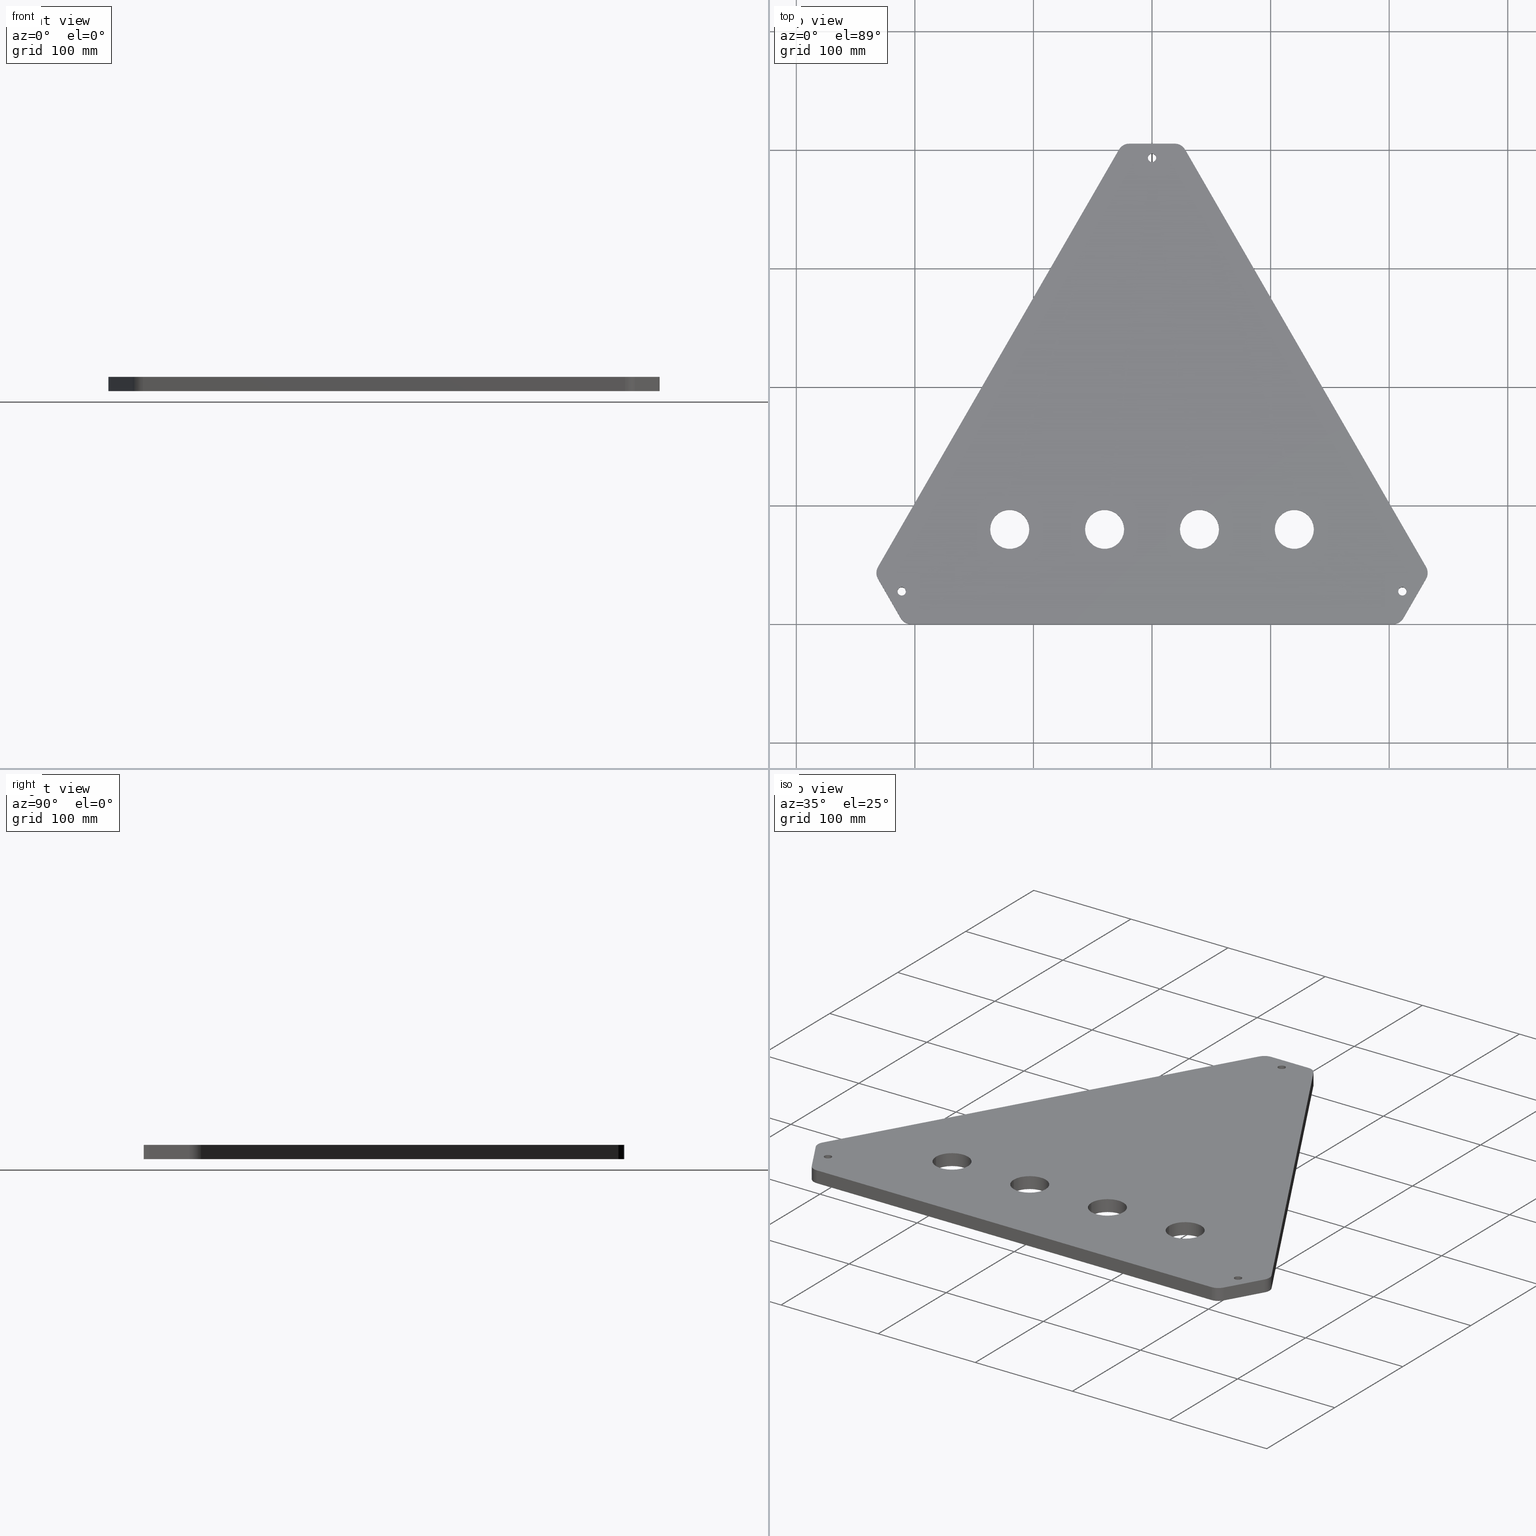
[diagram: canonical four-view strip — front | top / right | iso, engineering-drawing reading convention]
A machine part, canonical four-view strip (front | top / right | iso — engineering-drawing reading convention). The complete STEP part file that produces these views, byte-faithful:
ISO-10303-21;
HEADER;
FILE_DESCRIPTION (( 'STEP AP214' ),
    '1' );
FILE_NAME ('TripodSpreaderPlate.STEP',
    '2015-06-11T08:28:33',
    ( '' ),
    ( '' ),
    'SwSTEP 2.0',
    'SolidWorks 2014',
    '' );
FILE_SCHEMA (( 'AUTOMOTIVE_DESIGN' ));
ENDSEC;

DATA;
#1 = DIRECTION ( 'NONE',  ( 0.0000000000000000000, 0.0000000000000000000, 1.000000000000000000 ) ) ;
#2 = SURFACE_STYLE_FILL_AREA ( #639 ) ;
#3 = DIRECTION ( 'NONE',  ( 0.5000000000000346400, 0.8660254037844186100, 0.0000000000000000000 ) ) ;
#4 = CARTESIAN_POINT ( 'NONE',  ( 222.4529946162090500, 43.30127018922122800, 0.0000000000000000000 ) ) ;
#5 = VECTOR ( 'NONE', #793, 1000.000000000000000 ) ;
#6 = CARTESIAN_POINT ( 'NONE',  ( -120.0000000000000000, 80.00000000000000000, 12.00000000000000000 ) ) ;
#7 = DIRECTION ( 'NONE',  ( 0.0000000000000000000, 0.0000000000000000000, 1.000000000000000000 ) ) ;
#8 = LINE ( 'NONE', #241, #11 ) ;
#9 = FILL_AREA_STYLE ('',( #175 ) ) ;
#10 = EDGE_CURVE ( 'NONE', #550, #568, #975, .T. ) ;
#11 = VECTOR ( 'NONE', #330, 1000.000000000000000 ) ;
#12 = VECTOR ( 'NONE', #190, 1000.000000000000000 ) ;
#13 = DIRECTION ( 'NONE',  ( 1.000000000000000000, 0.0000000000000000000, 0.0000000000000000000 ) ) ;
#14 = CARTESIAN_POINT ( 'NONE',  ( -136.4999999999999700, 80.00000000000000000, 0.0000000000000000000 ) ) ;
#15 = CARTESIAN_POINT ( 'NONE',  ( 24.99999999999995400, 405.2998889711154200, 0.0000000000000000000 ) ) ;
#16 = EDGE_CURVE ( 'NONE', #568, #815, #957, .T. ) ;
#17 = CARTESIAN_POINT ( 'NONE',  ( 222.4529946162090500, 43.30127018922122800, 12.00000000000000000 ) ) ;
#18 = DIRECTION ( 'NONE',  ( -1.000000000000000000, 0.0000000000000000000, 0.0000000000000000000 ) ) ;
#19 = CYLINDRICAL_SURFACE ( 'NONE', #125, 3.500000000000004400 ) ;
#20 = CARTESIAN_POINT ( 'NONE',  ( -40.00000000000000000, 80.00000000000000000, -0.0009999999999992653700 ) ) ;
#21 = ORIENTED_EDGE ( 'NONE', *, *, #86, .T. ) ;
#22 = AXIS2_PLACEMENT_3D ( 'NONE', #854, #811, #997 ) ;
#23 = EDGE_CURVE ( 'NONE', #867, #547, #981, .T. ) ;
#24 = PRESENTATION_LAYER_ASSIGNMENT (  '', '', ( #933 ) ) ;
#25 = CIRCLE ( 'NONE', #489, 10.00000000000000900 ) ;
#26 = CIRCLE ( 'NONE', #990, 3.499999999999975100 ) ;
#27 = DIRECTION ( 'NONE',  ( 1.000000000000000000, 0.0000000000000000000, 0.0000000000000000000 ) ) ;
#28 = FACE_OUTER_BOUND ( 'NONE', #814, .T. ) ;
#29 = AXIS2_PLACEMENT_3D ( 'NONE', #859, #873, #865 ) ;
#30 = EDGE_CURVE ( 'NONE', #79, #465, #969, .T. ) ;
#31 = LINE ( 'NONE', #516, #12 ) ;
#32 = AXIS2_PLACEMENT_3D ( 'NONE', #487, #483, #861 ) ;
#33 = VECTOR ( 'NONE', #946, 1000.000000000000000 ) ;
#34 = CIRCLE ( 'NONE', #333, 3.499999999999975100 ) ;
#35 = ADVANCED_FACE ( 'NONE', ( #888 ), #953, .T. ) ;
#36 = CARTESIAN_POINT ( 'NONE',  ( 19.22649730810367400, 405.2998889711154200, 12.00000000000000000 ) ) ;
#37 = EDGE_LOOP ( 'NONE', ( #540, #741, #901, #512 ) ) ;
#38 = UNCERTAINTY_MEASURE_WITH_UNIT (LENGTH_MEASURE( 1.000000000000000100E-005 ), #855, 'distance_accuracy_value', 'NONE');
#39 = LINE ( 'NONE', #253, #5 ) ;
#40 = DIRECTION ( 'NONE',  ( 0.0000000000000000000, 0.0000000000000000000, -1.000000000000000000 ) ) ;
#41 = AXIS2_PLACEMENT_3D ( 'NONE', #252, #355, #795 ) ;
#42 = ADVANCED_FACE ( 'NONE', ( #998 ), #989, .T. ) ;
#43 = LINE ( 'NONE', #662, #33 ) ;
#44 = EDGE_CURVE ( 'NONE', #727, #439, #992, .T. ) ;
#45 =( NAMED_UNIT ( * ) SI_UNIT ( $, .STERADIAN. ) SOLID_ANGLE_UNIT ( ) );
#46 = ORIENTED_EDGE ( 'NONE', *, *, #1005, .T. ) ;
#47 = DIRECTION ( 'NONE',  ( 0.0000000000000000000, 0.0000000000000000000, -1.000000000000000000 ) ) ;
#48 = CARTESIAN_POINT ( 'NONE',  ( 231.1132486540532200, 38.30127018922088000, 12.00000000000000000 ) ) ;
#49 = CIRCLE ( 'NONE', #955, 3.500000000000004400 ) ;
#50 = EDGE_CURVE ( 'NONE', #506, #840, #949, .T. ) ;
#51 = LINE ( 'NONE', #876, #54 ) ;
#52 = FACE_OUTER_BOUND ( 'NONE', #606, .T. ) ;
#53 = DIRECTION ( 'NONE',  ( 0.5000000000000346400, 0.8660254037844186100, 0.0000000000000000000 ) ) ;
#54 = VECTOR ( 'NONE', #956, 1000.000000000000000 ) ;
#55 = FACE_OUTER_BOUND ( 'NONE', #716, .T. ) ;
#56 = CARTESIAN_POINT ( 'NONE',  ( -222.4529946162089400, 43.30127018922117100, 0.0000000000000000000 ) ) ;
#57 = CARTESIAN_POINT ( 'NONE',  ( 27.88675134594812000, 400.2998889711154200, 12.00000000000000000 ) ) ;
#58 = AXIS2_PLACEMENT_3D ( 'NONE', #742, #350, #335 ) ;
#59 = FACE_BOUND ( 'NONE', #887, .T. ) ;
#60 = ORIENTED_EDGE ( 'NONE', *, *, #30, .T. ) ;
#61 = DIRECTION ( 'NONE',  ( 1.000000000000000000, -1.734723475976805500E-015, 0.0000000000000000000 ) ) ;
#62 = DIRECTION ( 'NONE',  ( -1.000000000000000000, 0.0000000000000000000, 0.0000000000000000000 ) ) ;
#63 = FACE_BOUND ( 'NONE', #816, .T. ) ;
#64 = ADVANCED_FACE ( 'NONE', ( #934 ), #1008, .F. ) ;
#65 = FACE_BOUND ( 'NONE', #665, .T. ) ;
#66 = DIRECTION ( 'NONE',  ( -0.0000000000000000000, 0.0000000000000000000, -1.000000000000000000 ) ) ;
#67 = FACE_BOUND ( 'NONE', #300, .T. ) ;
#68 = DIRECTION ( 'NONE',  ( 0.0000000000000000000, 0.0000000000000000000, 1.000000000000000000 ) ) ;
#69 = FACE_OUTER_BOUND ( 'NONE', #553, .T. ) ;
#70 = FACE_BOUND ( 'NONE', #171, .T. ) ;
#71 = VECTOR ( 'NONE', #579, 1000.000000000000000 ) ;
#72 = CARTESIAN_POINT ( 'NONE',  ( 208.9999999999999700, 8.957595751706218500E-014, 12.00000000000000000 ) ) ;
#73 = CARTESIAN_POINT ( 'NONE',  ( -203.2264973081040000, 10.00000000000003600, 0.0000000000000000000 ) ) ;
#74 = CARTESIAN_POINT ( 'NONE',  ( -231.1132486540531400, 38.30127018922085100, 12.00000000000000000 ) ) ;
#75 = FACE_BOUND ( 'NONE', #935, .T. ) ;
#76 = FACE_BOUND ( 'NONE', #991, .T. ) ;
#77 = EDGE_CURVE ( 'NONE', #867, #1025, #977, .T. ) ;
#78 = CARTESIAN_POINT ( 'NONE',  ( 222.4529946162090500, 43.30127018922122800, 12.00000000000000000 ) ) ;
#79 = VERTEX_POINT ( 'NONE', #145 ) ;
#80 = LINE ( 'NONE', #823, #71 ) ;
#81 = DIRECTION ( 'NONE',  ( 0.8660254037844366000, -0.5000000000000037700, 0.0000000000000000000 ) ) ;
#82 = CARTESIAN_POINT ( 'NONE',  ( 211.1076951545877900, 27.65063509461099000, 12.00000000000000000 ) ) ;
#83 = CIRCLE ( 'NONE', #853, 10.00000000000000900 ) ;
#84 = CARTESIAN_POINT ( 'NONE',  ( -211.1076951545877300, 27.65063509461091200, 0.0000000000000000000 ) ) ;
#85 = CYLINDRICAL_SURFACE ( 'NONE', #767, 16.50000000000000000 ) ;
#86 = EDGE_CURVE ( 'NONE', #913, #549, #966, .T. ) ;
#87 = CARTESIAN_POINT ( 'NONE',  ( -207.6076951545877600, 27.65063509461091200, 0.0000000000000000000 ) ) ;
#88 = MECHANICAL_DESIGN_GEOMETRIC_PRESENTATION_REPRESENTATION (  '', ( #933 ), #920 ) ;
#89 = LINE ( 'NONE', #15, #104 ) ;
#90 = CARTESIAN_POINT ( 'NONE',  ( 214.6076951545877900, 27.65063509461099000, 12.00000000000000000 ) ) ;
#91 = CIRCLE ( 'NONE', #548, 3.499999999999975100 ) ;
#92 = SHAPE_DEFINITION_REPRESENTATION ( #412, #542 ) ;
#93 = ORIENTED_EDGE ( 'NONE', *, *, #644, .F. ) ;
#94 = CARTESIAN_POINT ( 'NONE',  ( 214.6076951545877900, 27.65063509461099000, 0.0000000000000000000 ) ) ;
#95 = DIRECTION ( 'NONE',  ( 1.000000000000000000, 0.0000000000000000000, 0.0000000000000000000 ) ) ;
#96 = VECTOR ( 'NONE', #461, 1000.000000000000000 ) ;
#97 = LINE ( 'NONE', #531, #96 ) ;
#98 = FACE_OUTER_BOUND ( 'NONE', #622, .T. ) ;
#99 = CIRCLE ( 'NONE', #1020, 10.00000000000000900 ) ;
#100 = CARTESIAN_POINT ( 'NONE',  ( -23.50000000000000000, 80.00000000000000000, 0.0000000000000000000 ) ) ;
#101 = VECTOR ( 'NONE', #609, 1000.000000000000000 ) ;
#102 = DIRECTION ( 'NONE',  ( -0.0000000000000000000, 0.0000000000000000000, -1.000000000000000000 ) ) ;
#103 = DIRECTION ( 'NONE',  ( -0.5000000000000346400, -0.8660254037844186100, 0.0000000000000000000 ) ) ;
#104 = VECTOR ( 'NONE', #119, 1000.000000000000000 ) ;
#105 = DIRECTION ( 'NONE',  ( 0.0000000000000000000, -0.0000000000000000000, 1.000000000000000000 ) ) ;
#106 = CYLINDRICAL_SURFACE ( 'NONE', #567, 16.50000000000000700 ) ;
#107 = AXIS2_PLACEMENT_3D ( 'NONE', #926, #870, #408 ) ;
#108 = DIRECTION ( 'NONE',  ( 0.0000000000000000000, 0.0000000000000000000, -1.000000000000000000 ) ) ;
#109 = ORIENTED_EDGE ( 'NONE', *, *, #872, .F. ) ;
#110 = CARTESIAN_POINT ( 'NONE',  ( 23.49999999999999300, 80.00000000000001400, 12.00000000000000000 ) ) ;
#111 = FACE_BOUND ( 'NONE', #704, .T. ) ;
#112 = LINE ( 'NONE', #457, #101 ) ;
#113 = CARTESIAN_POINT ( 'NONE',  ( 120.0000000000000000, 80.00000000000001400, 0.0000000000000000000 ) ) ;
#114 = FACE_OUTER_BOUND ( 'NONE', #649, .T. ) ;
#115 = CYLINDRICAL_SURFACE ( 'NONE', #709, 16.50000000000001400 ) ;
#116 = CIRCLE ( 'NONE', #654, 10.00000000000000900 ) ;
#117 = DIRECTION ( 'NONE',  ( -0.0000000000000000000, -0.0000000000000000000, 1.000000000000000000 ) ) ;
#118 = CIRCLE ( 'NONE', #736, 16.49999999999998600 ) ;
#119 = DIRECTION ( 'NONE',  ( -1.000000000000000000, 0.0000000000000000000, 0.0000000000000000000 ) ) ;
#120 = FACE_BOUND ( 'NONE', #849, .T. ) ;
#121 = CIRCLE ( 'NONE', #988, 9.999999999999998200 ) ;
#122 = EDGE_CURVE ( 'NONE', #632, #573, #947, .T. ) ;
#123 = EDGE_CURVE ( 'NONE', #213, #472, #796, .T. ) ;
#124 = FACE_OUTER_BOUND ( 'NONE', #599, .T. ) ;
#125 = AXIS2_PLACEMENT_3D ( 'NONE', #360, #429, #445 ) ;
#126 = FACE_BOUND ( 'NONE', #645, .T. ) ;
#127 = CIRCLE ( 'NONE', #474, 9.999999999999998200 ) ;
#128 = CIRCLE ( 'NONE', #617, 10.00000000000000900 ) ;
#129 = VECTOR ( 'NONE', #179, 1000.000000000000000 ) ;
#130 = CIRCLE ( 'NONE', #410, 10.00000000000000900 ) ;
#131 = EDGE_CURVE ( 'NONE', #557, #630, #881, .T. ) ;
#132 = CARTESIAN_POINT ( 'NONE',  ( 3.500000000000006200, 393.2998889711154200, 12.00000000000000000 ) ) ;
#133 = LINE ( 'NONE', #223, #129 ) ;
#134 = ORIENTED_EDGE ( 'NONE', *, *, #50, .T. ) ;
#135 = ADVANCED_FACE ( 'NONE', ( #924 ), #409, .F. ) ;
#136 = DIRECTION ( 'NONE',  ( 1.000000000000000000, 0.0000000000000000000, 0.0000000000000000000 ) ) ;
#137 = DIRECTION ( 'NONE',  ( 0.0000000000000000000, 0.0000000000000000000, 1.000000000000000000 ) ) ;
#138 = LINE ( 'NONE', #249, #149 ) ;
#139 = AXIS2_PLACEMENT_3D ( 'NONE', #714, #513, #509 ) ;
#140 = FACE_BOUND ( 'NONE', #634, .T. ) ;
#141 = ORIENTED_EDGE ( 'NONE', *, *, #366, .F. ) ;
#142 = CYLINDRICAL_SURFACE ( 'NONE', #324, 16.50000000000000000 ) ;
#143 = FACE_OUTER_BOUND ( 'NONE', #999, .T. ) ;
#144 =( NAMED_UNIT ( * ) PLANE_ANGLE_UNIT ( ) SI_UNIT ( $, .RADIAN. ) );
#145 = CARTESIAN_POINT ( 'NONE',  ( 231.1132486540534200, 48.30127018922127000, 12.00000000000000000 ) ) ;
#146 = CARTESIAN_POINT ( 'NONE',  ( -3.500000000000002700, 393.2998889711154200, 0.0000000000000000000 ) ) ;
#147 = SURFACE_SIDE_STYLE ('',( #2 ) ) ;
#148 = ORIENTED_EDGE ( 'NONE', *, *, #846, .T. ) ;
#149 = VECTOR ( 'NONE', #244, 1000.000000000000000 ) ;
#150 = DIRECTION ( 'NONE',  ( 1.000000000000000000, 0.0000000000000000000, 0.0000000000000000000 ) ) ;
#151 = CIRCLE ( 'NONE', #939, 16.50000000000000000 ) ;
#152 = EDGE_CURVE ( 'NONE', #681, #840, #904, .T. ) ;
#153 = CIRCLE ( 'NONE', #29, 16.50000000000001400 ) ;
#154 = CIRCLE ( 'NONE', #882, 10.00000000000000900 ) ;
#155 = PLANE ( 'NONE',  #388 ) ;
#156 = SURFACE_STYLE_USAGE ( .BOTH. , #147 ) ;
#157 = ADVANCED_FACE ( 'NONE', ( #906 ), #396, .F. ) ;
#158 = CYLINDRICAL_SURFACE ( 'NONE', #463, 16.50000000000000700 ) ;
#159 = FACE_OUTER_BOUND ( 'NONE', #670, .T. ) ;
#160 = DIRECTION ( 'NONE',  ( -0.5000000000000041100, 0.8660254037844362700, 0.0000000000000000000 ) ) ;
#161 = DIRECTION ( 'NONE',  ( 0.0000000000000000000, 0.0000000000000000000, 1.000000000000000000 ) ) ;
#162 = CARTESIAN_POINT ( 'NONE',  ( 208.9999999999999700, 8.957595751706218500E-014, 0.0000000000000000000 ) ) ;
#163 = AXIS2_PLACEMENT_3D ( 'NONE', #431, #660, #655 ) ;
#164 = EDGE_CURVE ( 'NONE', #1003, #913, #799, .T. ) ;
#165 = FACE_OUTER_BOUND ( 'NONE', #37, .T. ) ;
#166 = CIRCLE ( 'NONE', #222, 16.50000000000000700 ) ;
#167 = CARTESIAN_POINT ( 'NONE',  ( -19.22649730810385500, 395.2998889711153700, 12.00000000000000000 ) ) ;
#168 = EDGE_LOOP ( 'NONE', ( #204, #765, #693, #441 ) ) ;
#169 = CARTESIAN_POINT ( 'NONE',  ( -40.00000000000000000, 80.00000000000000000, 12.00000000000000000 ) ) ;
#170 = VERTEX_POINT ( 'NONE', #208 ) ;
#171 = EDGE_LOOP ( 'NONE', ( #141, #730 ) ) ;
#172 = ORIENTED_EDGE ( 'NONE', *, *, #464, .F. ) ;
#173 = DIRECTION ( 'NONE',  ( 1.000000000000000000, 0.0000000000000000000, 0.0000000000000000000 ) ) ;
#174 = EDGE_CURVE ( 'NONE', #984, #420, #405, .T. ) ;
#175 = FILL_AREA_STYLE_COLOUR ( '', #392 ) ;
#176 = DIRECTION ( 'NONE',  ( 1.000000000000000000, 0.0000000000000000000, 0.0000000000000000000 ) ) ;
#177 = FACE_OUTER_BOUND ( 'NONE', #521, .T. ) ;
#178 = CIRCLE ( 'NONE', #22, 10.00000000000000900 ) ;
#179 = DIRECTION ( 'NONE',  ( -0.0000000000000000000, -0.0000000000000000000, 1.000000000000000000 ) ) ;
#180 = CARTESIAN_POINT ( 'NONE',  ( 208.9999999999999700, 8.957595751706218500E-014, 12.00000000000000000 ) ) ;
#181 = CYLINDRICAL_SURFACE ( 'NONE', #107, 3.499999999999975100 ) ;
#182 = DIRECTION ( 'NONE',  ( 0.0000000000000000000, -0.0000000000000000000, 1.000000000000000000 ) ) ;
#183 = CARTESIAN_POINT ( 'NONE',  ( -103.5000000000000100, 80.00000000000000000, 0.0000000000000000000 ) ) ;
#184 = CIRCLE ( 'NONE', #163, 10.00000000000000900 ) ;
#185 = AXIS2_PLACEMENT_3D ( 'NONE', #538, #552, #576 ) ;
#186 = CARTESIAN_POINT ( 'NONE',  ( -203.2264973081040000, 10.00000000000003600, 12.00000000000000000 ) ) ;
#187 = ORIENTED_EDGE ( 'NONE', *, *, #306, .T. ) ;
#188 = CIRCLE ( 'NONE', #32, 3.499999999999975100 ) ;
#189 = AXIS2_PLACEMENT_3D ( 'NONE', #749, #801, #505 ) ;
#190 = DIRECTION ( 'NONE',  ( -0.0000000000000000000, -0.0000000000000000000, 1.000000000000000000 ) ) ;
#191 = FACE_OUTER_BOUND ( 'NONE', #663, .T. ) ;
#192 = CARTESIAN_POINT ( 'NONE',  ( -231.1132486540533100, 48.30127018922121400, 0.0000000000000000000 ) ) ;
#193 = CIRCLE ( 'NONE', #58, 16.50000000000000000 ) ;
#194 = CARTESIAN_POINT ( 'NONE',  ( -209.0000000000000300, 3.833983260577668600E-014, 0.0000000000000000000 ) ) ;
#195 = ORIENTED_EDGE ( 'NONE', *, *, #152, .T. ) ;
#196 = VECTOR ( 'NONE', #738, 1000.000000000000000 ) ;
#197 = DIRECTION ( 'NONE',  ( 1.000000000000000000, 0.0000000000000000000, -0.0000000000000000000 ) ) ;
#198 = LINE ( 'NONE', #844, #196 ) ;
#199 = PLANE ( 'NONE',  #406 ) ;
#200 = VERTEX_POINT ( 'NONE', #862 ) ;
#201 = DIRECTION ( 'NONE',  ( 1.000000000000000000, 0.0000000000000000000, 0.0000000000000000000 ) ) ;
#202 = LINE ( 'NONE', #560, #203 ) ;
#203 = VECTOR ( 'NONE', #718, 1000.000000000000100 ) ;
#204 = ORIENTED_EDGE ( 'NONE', *, *, #123, .T. ) ;
#205 = CYLINDRICAL_SURFACE ( 'NONE', #189, 10.00000000000000900 ) ;
#206 = CIRCLE ( 'NONE', #305, 16.50000000000000000 ) ;
#207 = DIRECTION ( 'NONE',  ( -0.0000000000000000000, 0.0000000000000000000, -1.000000000000000000 ) ) ;
#208 = CARTESIAN_POINT ( 'NONE',  ( -56.50000000000000000, 80.00000000000000000, 12.00000000000000000 ) ) ;
#209 = CARTESIAN_POINT ( 'NONE',  ( 211.1076951545877900, 27.65063509461099000, 0.0000000000000000000 ) ) ;
#210 = CIRCLE ( 'NONE', #224, 16.50000000000000700 ) ;
#211 = MANIFOLD_SOLID_BREP ( 'Cut-Extrude2', #699 ) ;
#212 = CARTESIAN_POINT ( 'NONE',  ( 211.8867513459481700, 4.999999999999755800, 12.00000000000000000 ) ) ;
#213 = VERTEX_POINT ( 'NONE', #183 ) ;
#214 = CIRCLE ( 'NONE', #185, 16.50000000000000000 ) ;
#215 = VECTOR ( 'NONE', #500, 1000.000000000000000 ) ;
#216 = CIRCLE ( 'NONE', #533, 16.50000000000000700 ) ;
#217 = CYLINDRICAL_SURFACE ( 'NONE', #269, 10.00000000000000900 ) ;
#218 = CARTESIAN_POINT ( 'NONE',  ( 203.2264973081040000, 8.886827353357504600E-014, 0.0000000000000000000 ) ) ;
#219 = EDGE_CURVE ( 'NONE', #727, #984, #371, .T. ) ;
#220 = CIRCLE ( 'NONE', #139, 3.500000000000004400 ) ;
#221 = CIRCLE ( 'NONE', #299, 16.50000000000001400 ) ;
#222 = AXIS2_PLACEMENT_3D ( 'NONE', #497, #490, #936 ) ;
#223 = CARTESIAN_POINT ( 'NONE',  ( -23.50000000000000000, 80.00000000000000000, -0.0009999999999992653700 ) ) ;
#224 = AXIS2_PLACEMENT_3D ( 'NONE', #404, #734, #729 ) ;
#225 = EDGE_CURVE ( 'NONE', #472, #894, #411, .T. ) ;
#226 = FACE_OUTER_BOUND ( 'NONE', #317, .T. ) ;
#227 = DIRECTION ( 'NONE',  ( 0.0000000000000000000, 0.0000000000000000000, -1.000000000000000000 ) ) ;
#228 = FACE_OUTER_BOUND ( 'NONE', #574, .T. ) ;
#229 = CIRCLE ( 'NONE', #321, 16.49999999999998600 ) ;
#230 = ORIENTED_EDGE ( 'NONE', *, *, #724, .F. ) ;
#231 = ADVANCED_FACE ( 'NONE', ( #374 ), #341, .F. ) ;
#232 = LINE ( 'NONE', #783, #215 ) ;
#233 = CYLINDRICAL_SURFACE ( 'NONE', #468, 16.50000000000001400 ) ;
#234 = DIRECTION ( 'NONE',  ( -1.000000000000000000, 0.0000000000000000000, 0.0000000000000000000 ) ) ;
#235 = CARTESIAN_POINT ( 'NONE',  ( 103.4999999999999900, 80.00000000000001400, 12.00000000000000000 ) ) ;
#236 = DIRECTION ( 'NONE',  ( -0.0000000000000000000, 0.0000000000000000000, -1.000000000000000000 ) ) ;
#237 = EDGE_CURVE ( 'NONE', #439, #420, #357, .T. ) ;
#238 = FACE_OUTER_BOUND ( 'NONE', #776, .T. ) ;
#239 = VECTOR ( 'NONE', #384, 1000.000000000000000 ) ;
#240 = LINE ( 'NONE', #596, #239 ) ;
#241 = CARTESIAN_POINT ( 'NONE',  ( 24.99999999999995400, 405.2998889711154200, 12.00000000000000000 ) ) ;
#242 = CYLINDRICAL_SURFACE ( 'NONE', #347, 10.00000000000000900 ) ;
#243 = LINE ( 'NONE', #603, #251 ) ;
#244 = DIRECTION ( 'NONE',  ( -0.0000000000000000000, -0.0000000000000000000, 1.000000000000000000 ) ) ;
#245 = EDGE_CURVE ( 'NONE', #710, #549, #348, .T. ) ;
#246 = FACE_OUTER_BOUND ( 'NONE', #694, .T. ) ;
#247 = DIRECTION ( 'NONE',  ( -0.0000000000000000000, -0.0000000000000000000, 1.000000000000000000 ) ) ;
#248 = VECTOR ( 'NONE', #961, 1000.000000000000000 ) ;
#249 = CARTESIAN_POINT ( 'NONE',  ( -56.50000000000000000, 80.00000000000000000, -0.0009999999999992653700 ) ) ;
#250 = CYLINDRICAL_SURFACE ( 'NONE', #363, 9.999999999999996400 ) ;
#251 = VECTOR ( 'NONE', #528, 1000.000000000000000 ) ;
#252 = CARTESIAN_POINT ( 'NONE',  ( -209.0000000000000300, 3.833983260577668600E-014, 12.00000000000000000 ) ) ;
#253 = CARTESIAN_POINT ( 'NONE',  ( -207.6076951545877600, 27.65063509461091200, -0.0009999999999992653700 ) ) ;
#254 = EDGE_CURVE ( 'NONE', #894, #353, #339, .T. ) ;
#255 =( GEOMETRIC_REPRESENTATION_CONTEXT ( 3 ) GLOBAL_UNCERTAINTY_ASSIGNED_CONTEXT ( ( #38 ) ) GLOBAL_UNIT_ASSIGNED_CONTEXT ( ( #855, #541, #45 ) ) REPRESENTATION_CONTEXT ( 'NONE', 'WORKASPACE' ) );
#256 = LINE ( 'NONE', #974, #248 ) ;
#257 = CARTESIAN_POINT ( 'NONE',  ( 1.575633682849302900E-015, 393.2998889711154200, -0.0009999999999992653700 ) ) ;
#258 = FACE_OUTER_BOUND ( 'NONE', #608, .T. ) ;
#259 = VECTOR ( 'NONE', #520, 1000.000000000000000 ) ;
#260 = CARTESIAN_POINT ( 'NONE',  ( 56.50000000000000700, 80.00000000000001400, 0.0000000000000000000 ) ) ;
#261 = EDGE_CURVE ( 'NONE', #462, #764, #334, .T. ) ;
#262 = CARTESIAN_POINT ( 'NONE',  ( 0.0000000000000000000, 0.0000000000000000000, 0.0000000000000000000 ) ) ;
#263 = ADVANCED_FACE ( 'NONE', ( #309 ), #669, .F. ) ;
#264 = EDGE_CURVE ( 'NONE', #535, #764, #308, .T. ) ;
#265 = CIRCLE ( 'NONE', #551, 16.50000000000000700 ) ;
#266 = CYLINDRICAL_SURFACE ( 'NONE', #368, 3.499999999999975100 ) ;
#267 = CARTESIAN_POINT ( 'NONE',  ( 211.8867513459481700, 4.999999999999753100, 12.00000000000000000 ) ) ;
#268 = DIRECTION ( 'NONE',  ( -0.8660254037844187200, 0.5000000000000347500, 0.0000000000000000000 ) ) ;
#269 = AXIS2_PLACEMENT_3D ( 'NONE', #380, #287, #18 ) ;
#270 = EDGE_CURVE ( 'NONE', #213, #353, #322, .T. ) ;
#271 = CIRCLE ( 'NONE', #386, 3.499999999999975100 ) ;
#272 = VECTOR ( 'NONE', #561, 1000.000000000000100 ) ;
#273 = LINE ( 'NONE', #447, #278 ) ;
#274 = DIRECTION ( 'NONE',  ( -0.0000000000000000000, -0.0000000000000000000, 1.000000000000000000 ) ) ;
#275 = ORIENTED_EDGE ( 'NONE', *, *, #254, .F. ) ;
#276 = DIRECTION ( 'NONE',  ( 0.5000000000000041100, -0.8660254037844362700, 0.0000000000000000000 ) ) ;
#277 = DIRECTION ( 'NONE',  ( 1.000000000000000000, 0.0000000000000000000, 0.0000000000000000000 ) ) ;
#278 = VECTOR ( 'NONE', #375, 1000.000000000000000 ) ;
#279 = VECTOR ( 'NONE', #3, 1000.000000000000200 ) ;
#280 = DIRECTION ( 'NONE',  ( -0.8660254037844362700, -0.5000000000000041100, 0.0000000000000000000 ) ) ;
#281 = EDGE_CURVE ( 'NONE', #712, #594, #359, .T. ) ;
#282 = FACE_OUTER_BOUND ( 'NONE', #951, .T. ) ;
#283 = DIRECTION ( 'NONE',  ( 1.000000000000000000, 0.0000000000000000000, 0.0000000000000000000 ) ) ;
#284 = VECTOR ( 'NONE', #661, 1000.000000000000000 ) ;
#285 = EDGE_CURVE ( 'NONE', #712, #544, #303, .T. ) ;
#286 = LINE ( 'NONE', #162, #279 ) ;
#287 = DIRECTION ( 'NONE',  ( 0.0000000000000000000, 0.0000000000000000000, -1.000000000000000000 ) ) ;
#288 = CIRCLE ( 'NONE', #403, 10.00000000000000900 ) ;
#289 = DIRECTION ( 'NONE',  ( 0.0000000000000000000, 0.0000000000000000000, 1.000000000000000000 ) ) ;
#290 = CYLINDRICAL_SURFACE ( 'NONE', #428, 3.499999999999975100 ) ;
#291 = FACE_BOUND ( 'NONE', #692, .T. ) ;
#292 = DIRECTION ( 'NONE',  ( -1.000000000000000000, 0.0000000000000000000, 0.0000000000000000000 ) ) ;
#293 = CARTESIAN_POINT ( 'NONE',  ( 40.00000000000000000, 80.00000000000001400, 12.00000000000000000 ) ) ;
#294 = EDGE_CURVE ( 'NONE', #850, #535, #963, .T. ) ;
#295 = CARTESIAN_POINT ( 'NONE',  ( -203.2264973081040000, 3.904751658926383700E-014, 0.0000000000000000000 ) ) ;
#296 = CARTESIAN_POINT ( 'NONE',  ( 19.22649730810367400, 395.2998889711154200, 12.00000000000000000 ) ) ;
#297 = DIRECTION ( 'NONE',  ( 0.0000000000000000000, -0.0000000000000000000, 1.000000000000000000 ) ) ;
#298 = DIRECTION ( 'NONE',  ( 1.000000000000000000, 0.0000000000000000000, 0.0000000000000000000 ) ) ;
#299 = AXIS2_PLACEMENT_3D ( 'NONE', #580, #565, #423 ) ;
#300 = EDGE_LOOP ( 'NONE', ( #925, #504 ) ) ;
#301 = LINE ( 'NONE', #577, #460 ) ;
#302 = DIRECTION ( 'NONE',  ( 1.000000000000000000, 0.0000000000000000000, 0.0000000000000000000 ) ) ;
#303 = LINE ( 'NONE', #590, #272 ) ;
#304 = EDGE_LOOP ( 'NONE', ( #438, #536, #753, #959 ) ) ;
#305 = AXIS2_PLACEMENT_3D ( 'NONE', #635, #629, #851 ) ;
#306 = EDGE_CURVE ( 'NONE', #806, #658, #265, .T. ) ;
#307 = DIRECTION ( 'NONE',  ( -0.0000000000000000000, -0.0000000000000000000, 1.000000000000000000 ) ) ;
#308 = LINE ( 'NONE', #602, #332 ) ;
#309 = FACE_OUTER_BOUND ( 'NONE', #566, .T. ) ;
#310 = ORIENTED_EDGE ( 'NONE', *, *, #715, .T. ) ;
#311 = DIRECTION ( 'NONE',  ( -0.0000000000000000000, -0.0000000000000000000, 1.000000000000000000 ) ) ;
#312 = CARTESIAN_POINT ( 'NONE',  ( -19.22649730810385500, 405.2998889711154200, 12.00000000000000000 ) ) ;
#313 = FACE_OUTER_BOUND ( 'NONE', #527, .T. ) ;
#314 = FACE_BOUND ( 'NONE', #597, .T. ) ;
#315 = ORIENTED_EDGE ( 'NONE', *, *, #744, .T. ) ;
#316 = DIRECTION ( 'NONE',  ( 1.000000000000000000, 0.0000000000000000000, 0.0000000000000000000 ) ) ;
#317 = EDGE_LOOP ( 'NONE', ( #230, #492, #615, #856 ) ) ;
#318 = AXIS2_PLACEMENT_3D ( 'NONE', #1022, #81, #945 ) ;
#319 = ORIENTED_EDGE ( 'NONE', *, *, #122, .F. ) ;
#320 = CYLINDRICAL_SURFACE ( 'NONE', #413, 10.00000000000000900 ) ;
#321 = AXIS2_PLACEMENT_3D ( 'NONE', #6, #1, #302 ) ;
#322 = LINE ( 'NONE', #648, #284 ) ;
#323 = CIRCLE ( 'NONE', #787, 9.999999999999996400 ) ;
#324 = AXIS2_PLACEMENT_3D ( 'NONE', #941, #1026, #173 ) ;
#325 = EDGE_CURVE ( 'NONE', #619, #544, #301, .T. ) ;
#326 = ADVANCED_FACE ( 'NONE', ( #452 ), #233, .F. ) ;
#327 = CARTESIAN_POINT ( 'NONE',  ( -23.50000000000000000, 80.00000000000000000, 12.00000000000000000 ) ) ;
#328 = VECTOR ( 'NONE', #874, 1000.000000000000000 ) ;
#329 = AXIS2_PLACEMENT_3D ( 'NONE', #113, #102, #95 ) ;
#330 = DIRECTION ( 'NONE',  ( -1.000000000000000000, 0.0000000000000000000, 0.0000000000000000000 ) ) ;
#331 = ORIENTED_EDGE ( 'NONE', *, *, #245, .F. ) ;
#332 = VECTOR ( 'NONE', #598, 1000.000000000000000 ) ;
#333 = AXIS2_PLACEMENT_3D ( 'NONE', #373, #367, #364 ) ;
#334 = LINE ( 'NONE', #830, #328 ) ;
#335 = DIRECTION ( 'NONE',  ( 1.000000000000000000, 0.0000000000000000000, 0.0000000000000000000 ) ) ;
#336 = EDGE_CURVE ( 'NONE', #594, #619, #454, .T. ) ;
#337 = VECTOR ( 'NONE', #761, 1000.000000000000000 ) ;
#338 = CARTESIAN_POINT ( 'NONE',  ( 234.0000000000017100, 43.30127018922103600, 12.00000000000000000 ) ) ;
#339 = CIRCLE ( 'NONE', #581, 16.49999999999998600 ) ;
#340 = CARTESIAN_POINT ( 'NONE',  ( -103.5000000000000100, 80.00000000000000000, 12.00000000000000000 ) ) ;
#341 = CYLINDRICAL_SURFACE ( 'NONE', #564, 3.499999999999975100 ) ;
#342 = AXIS2_PLACEMENT_3D ( 'NONE', #676, #671, #668 ) ;
#343 = ADVANCED_FACE ( 'NONE', ( #313 ), #158, .F. ) ;
#344 = DIRECTION ( 'NONE',  ( -0.0000000000000000000, 0.0000000000000000000, -1.000000000000000000 ) ) ;
#345 = DIRECTION ( 'NONE',  ( 1.000000000000000000, 0.0000000000000000000, 0.0000000000000000000 ) ) ;
#346 = ORIENTED_EDGE ( 'NONE', *, *, #164, .T. ) ;
#347 = AXIS2_PLACEMENT_3D ( 'NONE', #964, #896, #892 ) ;
#348 = LINE ( 'NONE', #889, #337 ) ;
#349 = DIRECTION ( 'NONE',  ( 1.000000000000000000, 0.0000000000000000000, 0.0000000000000000000 ) ) ;
#350 = DIRECTION ( 'NONE',  ( -0.0000000000000000000, 0.0000000000000000000, -1.000000000000000000 ) ) ;
#351 = DIRECTION ( 'NONE',  ( 0.0000000000000000000, 0.0000000000000000000, 1.000000000000000000 ) ) ;
#352 = VECTOR ( 'NONE', #797, 1000.000000000000000 ) ;
#353 = VERTEX_POINT ( 'NONE', #340 ) ;
#354 = DIRECTION ( 'NONE',  ( -0.0000000000000000000, 0.0000000000000000000, -1.000000000000000000 ) ) ;
#355 = DIRECTION ( 'NONE',  ( -1.225744615102523800E-016, 1.000000000000000000, 0.0000000000000000000 ) ) ;
#356 = CARTESIAN_POINT ( 'NONE',  ( 211.1076951545877900, 27.65063509461099000, -0.0009999999999992653700 ) ) ;
#357 = LINE ( 'NONE', #807, #352 ) ;
#358 = ORIENTED_EDGE ( 'NONE', *, *, #612, .F. ) ;
#359 = LINE ( 'NONE', #638, #993 ) ;
#360 = CARTESIAN_POINT ( 'NONE',  ( 1.575633682849302900E-015, 393.2998889711154200, -0.0009999999999992653700 ) ) ;
#361 = PLANE ( 'NONE',  #41 ) ;
#362 = DIRECTION ( 'NONE',  ( 1.000000000000000000, 0.0000000000000000000, 0.0000000000000000000 ) ) ;
#363 = AXIS2_PLACEMENT_3D ( 'NONE', #296, #108, #292 ) ;
#364 = DIRECTION ( 'NONE',  ( 1.000000000000000000, 0.0000000000000000000, 0.0000000000000000000 ) ) ;
#365 = CARTESIAN_POINT ( 'NONE',  ( -120.0000000000000000, 80.00000000000000000, -0.0009999999999992653700 ) ) ;
#366 = EDGE_CURVE ( 'NONE', #868, #430, #216, .T. ) ;
#367 = DIRECTION ( 'NONE',  ( 0.0000000000000000000, 0.0000000000000000000, 1.000000000000000000 ) ) ;
#368 = AXIS2_PLACEMENT_3D ( 'NONE', #752, #689, #13 ) ;
#369 = ORIENTED_EDGE ( 'NONE', *, *, #690, .F. ) ;
#370 = VECTOR ( 'NONE', #938, 1000.000000000000000 ) ;
#371 = LINE ( 'NONE', #1023, #370 ) ;
#372 = AXIS2_PLACEMENT_3D ( 'NONE', #631, #236, #398 ) ;
#373 = CARTESIAN_POINT ( 'NONE',  ( -211.1076951545877300, 27.65063509461091200, 12.00000000000000000 ) ) ;
#374 = FACE_OUTER_BOUND ( 'NONE', #789, .T. ) ;
#375 = DIRECTION ( 'NONE',  ( -0.0000000000000000000, -0.0000000000000000000, 1.000000000000000000 ) ) ;
#376 = DIRECTION ( 'NONE',  ( 1.000000000000000000, 0.0000000000000000000, 0.0000000000000000000 ) ) ;
#377 = VECTOR ( 'NONE', #893, 1000.000000000000000 ) ;
#378 = DIRECTION ( 'NONE',  ( 1.000000000000000000, 0.0000000000000000000, 0.0000000000000000000 ) ) ;
#379 = CARTESIAN_POINT ( 'NONE',  ( -136.4999999999999700, 80.00000000000000000, 12.00000000000000000 ) ) ;
#380 = CARTESIAN_POINT ( 'NONE',  ( 203.2264973081040000, 10.00000000000008500, 12.00000000000000000 ) ) ;
#381 = DIRECTION ( 'NONE',  ( -0.0000000000000000000, -0.0000000000000000000, 1.000000000000000000 ) ) ;
#382 = UNCERTAINTY_MEASURE_WITH_UNIT (LENGTH_MEASURE( 1.000000000000000100E-005 ), #559, 'distance_accuracy_value', 'NONE');
#383 = DIRECTION ( 'NONE',  ( 1.000000000000000000, 0.0000000000000000000, 0.0000000000000000000 ) ) ;
#384 = DIRECTION ( 'NONE',  ( -0.0000000000000000000, -0.0000000000000000000, 1.000000000000000000 ) ) ;
#385 = DIRECTION ( 'NONE',  ( 0.0000000000000000000, -0.0000000000000000000, 1.000000000000000000 ) ) ;
#386 = AXIS2_PLACEMENT_3D ( 'NONE', #209, #207, #201 ) ;
#387 = CARTESIAN_POINT ( 'NONE',  ( 211.1076951545877900, 27.65063509461099000, 0.0000000000000000000 ) ) ;
#388 = AXIS2_PLACEMENT_3D ( 'NONE', #180, #268, #103 ) ;
#389 = CARTESIAN_POINT ( 'NONE',  ( -203.2264973081040000, 3.904751658926383700E-014, 12.00000000000000000 ) ) ;
#390 = ADVANCED_FACE ( 'NONE', ( #451 ), #290, .F. ) ;
#391 = PRESENTATION_STYLE_ASSIGNMENT (( #1016 ) ) ;
#392 = COLOUR_RGB ( '',1.000000000000000000, 1.000000000000000000, 1.000000000000000000 ) ;
#393 = ADVANCED_FACE ( 'NONE', ( #314, #126, #140, #458, #291, #120, #111, #69 ), #199, .F. ) ;
#394 = PRODUCT_CONTEXT ( 'NONE', #922, 'mechanical' ) ;
#395 = SURFACE_STYLE_FILL_AREA ( #9 ) ;
#396 = CYLINDRICAL_SURFACE ( 'NONE', #682, 16.49999999999998600 ) ;
#397 = CARTESIAN_POINT ( 'NONE',  ( -27.88675134594825900, 400.2998889711154200, 12.00000000000000000 ) ) ;
#398 = DIRECTION ( 'NONE',  ( 1.000000000000000000, 0.0000000000000000000, 0.0000000000000000000 ) ) ;
#399 = ORIENTED_EDGE ( 'NONE', *, *, #1013, .T. ) ;
#400 = CARTESIAN_POINT ( 'NONE',  ( 103.4999999999999900, 80.00000000000001400, -0.0009999999999992653700 ) ) ;
#401 = CARTESIAN_POINT ( 'NONE',  ( -56.50000000000000000, 80.00000000000000000, 0.0000000000000000000 ) ) ;
#402 =( NAMED_UNIT ( * ) SI_UNIT ( $, .STERADIAN. ) SOLID_ANGLE_UNIT ( ) );
#403 = AXIS2_PLACEMENT_3D ( 'NONE', #588, #885, #519 ) ;
#404 = CARTESIAN_POINT ( 'NONE',  ( 40.00000000000000000, 80.00000000000001400, 12.00000000000000000 ) ) ;
#405 = CIRCLE ( 'NONE', #695, 3.499999999999975100 ) ;
#406 = AXIS2_PLACEMENT_3D ( 'NONE', #262, #297, #197 ) ;
#407 = VECTOR ( 'NONE', #832, 1000.000000000000000 ) ;
#408 = DIRECTION ( 'NONE',  ( 1.000000000000000000, 0.0000000000000000000, 0.0000000000000000000 ) ) ;
#409 = CYLINDRICAL_SURFACE ( 'NONE', #720, 16.49999999999998600 ) ;
#410 = AXIS2_PLACEMENT_3D ( 'NONE', #56, #825, #836 ) ;
#411 = LINE ( 'NONE', #954, #377 ) ;
#412 = PRODUCT_DEFINITION_SHAPE ( 'NONE', 'NONE',  #591 ) ;
#413 = AXIS2_PLACEMENT_3D ( 'NONE', #78, #863, #62 ) ;
#414 = CARTESIAN_POINT ( 'NONE',  ( 40.00000000000000000, 80.00000000000001400, -0.0009999999999992653700 ) ) ;
#415 = ADVANCED_FACE ( 'NONE', ( #52 ), #155, .F. ) ;
#416 = ORIENTED_EDGE ( 'NONE', *, *, #932, .T. ) ;
#417 = CARTESIAN_POINT ( 'NONE',  ( 23.49999999999999300, 80.00000000000001400, 0.0000000000000000000 ) ) ;
#418 = AXIS2_PLACEMENT_3D ( 'NONE', #453, #385, #383 ) ;
#419 = ORIENTED_EDGE ( 'NONE', *, *, #928, .F. ) ;
#420 = VERTEX_POINT ( 'NONE', #90 ) ;
#421 = VERTEX_POINT ( 'NONE', #87 ) ;
#422 = ORIENTED_EDGE ( 'NONE', *, *, #837, .F. ) ;
#423 = DIRECTION ( 'NONE',  ( 1.000000000000000000, 0.0000000000000000000, 0.0000000000000000000 ) ) ;
#424 = ORIENTED_EDGE ( 'NONE', *, *, #164, .F. ) ;
#425 = CARTESIAN_POINT ( 'NONE',  ( -234.0000000000015900, 43.30127018922097900, 0.0000000000000000000 ) ) ;
#426 = ORIENTED_EDGE ( 'NONE', *, *, #973, .T. ) ;
#427 = ORIENTED_EDGE ( 'NONE', *, *, #724, .T. ) ;
#428 = AXIS2_PLACEMENT_3D ( 'NONE', #356, #311, #376 ) ;
#429 = DIRECTION ( 'NONE',  ( -0.0000000000000000000, -0.0000000000000000000, 1.000000000000000000 ) ) ;
#430 = VERTEX_POINT ( 'NONE', #110 ) ;
#431 = CARTESIAN_POINT ( 'NONE',  ( 203.2264973081040000, 10.00000000000008500, 12.00000000000000000 ) ) ;
#432 = ORIENTED_EDGE ( 'NONE', *, *, #860, .F. ) ;
#433 = CARTESIAN_POINT ( 'NONE',  ( 0.0000000000000000000, 0.0000000000000000000, 12.00000000000000000 ) ) ;
#434 = PLANE ( 'NONE',  #318 ) ;
#435 = CARTESIAN_POINT ( 'NONE',  ( 1.575633682849302900E-015, 393.2998889711154200, 12.00000000000000000 ) ) ;
#436 = DIRECTION ( 'NONE',  ( 1.000000000000000000, 0.0000000000000000000, 0.0000000000000000000 ) ) ;
#437 = VERTEX_POINT ( 'NONE', #100 ) ;
#438 = ORIENTED_EDGE ( 'NONE', *, *, #910, .F. ) ;
#439 = VERTEX_POINT ( 'NONE', #94 ) ;
#440 = DIRECTION ( 'NONE',  ( -0.5000000000000036600, -0.8660254037844366000, -0.0000000000000000000 ) ) ;
#441 = ORIENTED_EDGE ( 'NONE', *, *, #270, .F. ) ;
#442 = DIRECTION ( 'NONE',  ( -0.0000000000000000000, 0.0000000000000000000, -1.000000000000000000 ) ) ;
#443 = EDGE_LOOP ( 'NONE', ( #636, #794, #930, #480 ) ) ;
#444 = DIRECTION ( 'NONE',  ( 1.000000000000000000, 0.0000000000000000000, 0.0000000000000000000 ) ) ;
#445 = DIRECTION ( 'NONE',  ( 1.000000000000000000, 0.0000000000000000000, 0.0000000000000000000 ) ) ;
#446 = ORIENTED_EDGE ( 'NONE', *, *, #281, .F. ) ;
#447 = CARTESIAN_POINT ( 'NONE',  ( 231.1132486540532200, 38.30127018922088700, 12.00000000000000000 ) ) ;
#448 = DIRECTION ( 'NONE',  ( -0.0000000000000000000, -0.0000000000000000000, 1.000000000000000000 ) ) ;
#449 = ORIENTED_EDGE ( 'NONE', *, *, #837, .T. ) ;
#450 = DIRECTION ( 'NONE',  ( -0.0000000000000000000, -0.0000000000000000000, 1.000000000000000000 ) ) ;
#451 = FACE_OUTER_BOUND ( 'NONE', #604, .T. ) ;
#452 = FACE_OUTER_BOUND ( 'NONE', #479, .T. ) ;
#453 = CARTESIAN_POINT ( 'NONE',  ( -19.22649730810385500, 395.2998889711153700, 12.00000000000000000 ) ) ;
#454 = LINE ( 'NONE', #425, #455 ) ;
#455 = VECTOR ( 'NONE', #440, 1000.000000000000100 ) ;
#456 = DIRECTION ( 'NONE',  ( 1.000000000000000000, 0.0000000000000000000, 0.0000000000000000000 ) ) ;
#457 = CARTESIAN_POINT ( 'NONE',  ( -232.4529946162089400, 43.30127018922117100, 12.00000000000000000 ) ) ;
#458 = FACE_BOUND ( 'NONE', #1031, .T. ) ;
#459 = DIRECTION ( 'NONE',  ( -0.0000000000000000000, 0.0000000000000000000, -1.000000000000000000 ) ) ;
#460 = VECTOR ( 'NONE', #501, 1000.000000000000000 ) ;
#461 = DIRECTION ( 'NONE',  ( 0.0000000000000000000, 0.0000000000000000000, -1.000000000000000000 ) ) ;
#462 = VERTEX_POINT ( 'NONE', #74 ) ;
#463 = AXIS2_PLACEMENT_3D ( 'NONE', #414, #381, #378 ) ;
#464 = EDGE_CURVE ( 'NONE', #547, #773, #286, .T. ) ;
#465 = VERTEX_POINT ( 'NONE', #57 ) ;
#466 = DIRECTION ( 'NONE',  ( 1.000000000000000000, 1.110223024625157000E-014, 0.0000000000000000000 ) ) ;
#467 = ORIENTED_EDGE ( 'NONE', *, *, #219, .F. ) ;
#468 = AXIS2_PLACEMENT_3D ( 'NONE', #570, #448, #444 ) ;
#469 = ORIENTED_EDGE ( 'NONE', *, *, #237, .F. ) ;
#470 = EDGE_CURVE ( 'NONE', #547, #913, #288, .T. ) ;
#471 = VERTEX_POINT ( 'NONE', #600 ) ;
#472 = VERTEX_POINT ( 'NONE', #14 ) ;
#473 = ORIENTED_EDGE ( 'NONE', *, *, #737, .T. ) ;
#474 = AXIS2_PLACEMENT_3D ( 'NONE', #762, #696, #691 ) ;
#475 = ORIENTED_EDGE ( 'NONE', *, *, #264, .F. ) ;
#476 = ADVANCED_FACE ( 'NONE', ( #282 ), #266, .F. ) ;
#477 = ORIENTED_EDGE ( 'NONE', *, *, #575, .T. ) ;
#478 = CARTESIAN_POINT ( 'NONE',  ( 19.22649730810367400, 405.2998889711154200, 0.0000000000000000000 ) ) ;
#479 = EDGE_LOOP ( 'NONE', ( #915, #819, #583, #884 ) ) ;
#480 = ORIENTED_EDGE ( 'NONE', *, *, #613, .T. ) ;
#481 = EDGE_CURVE ( 'NONE', #773, #1025, #273, .T. ) ;
#482 = ORIENTED_EDGE ( 'NONE', *, *, #264, .T. ) ;
#483 = DIRECTION ( 'NONE',  ( -0.0000000000000000000, 0.0000000000000000000, -1.000000000000000000 ) ) ;
#484 = ORIENTED_EDGE ( 'NONE', *, *, #929, .T. ) ;
#485 = ORIENTED_EDGE ( 'NONE', *, *, #890, .F. ) ;
#486 = DIRECTION ( 'NONE',  ( -0.0000000000000000000, -0.0000000000000000000, 1.000000000000000000 ) ) ;
#487 = CARTESIAN_POINT ( 'NONE',  ( -211.1076951545877300, 27.65063509461091200, 0.0000000000000000000 ) ) ;
#488 = ORIENTED_EDGE ( 'NONE', *, *, #605, .T. ) ;
#489 = AXIS2_PLACEMENT_3D ( 'NONE', #186, #182, #176 ) ;
#490 = DIRECTION ( 'NONE',  ( -0.0000000000000000000, 0.0000000000000000000, -1.000000000000000000 ) ) ;
#491 = CARTESIAN_POINT ( 'NONE',  ( 211.1076951545877900, 27.65063509461099000, 12.00000000000000000 ) ) ;
#492 = ORIENTED_EDGE ( 'NONE', *, *, #86, .F. ) ;
#493 = CARTESIAN_POINT ( 'NONE',  ( 40.00000000000000000, 80.00000000000001400, 0.0000000000000000000 ) ) ;
#494 = ORIENTED_EDGE ( 'NONE', *, *, #261, .T. ) ;
#495 = ADVANCED_FACE ( 'NONE', ( #258 ), #250, .T. ) ;
#496 = ORIENTED_EDGE ( 'NONE', *, *, #775, .T. ) ;
#497 = CARTESIAN_POINT ( 'NONE',  ( 40.00000000000000000, 80.00000000000001400, 0.0000000000000000000 ) ) ;
#498 = VERTEX_POINT ( 'NONE', #970 ) ;
#499 = ORIENTED_EDGE ( 'NONE', *, *, #30, .F. ) ;
#500 = DIRECTION ( 'NONE',  ( -0.0000000000000000000, -0.0000000000000000000, 1.000000000000000000 ) ) ;
#501 = DIRECTION ( 'NONE',  ( -0.0000000000000000000, -0.0000000000000000000, 1.000000000000000000 ) ) ;
#502 = EDGE_CURVE ( 'NONE', #710, #1003, #256, .T. ) ;
#503 = ORIENTED_EDGE ( 'NONE', *, *, #10, .F. ) ;
#504 = ORIENTED_EDGE ( 'NONE', *, *, #809, .F. ) ;
#505 = DIRECTION ( 'NONE',  ( -1.000000000000000000, 0.0000000000000000000, 0.0000000000000000000 ) ) ;
#506 = VERTEX_POINT ( 'NONE', #899 ) ;
#507 = CARTESIAN_POINT ( 'NONE',  ( -120.0000000000000000, 80.00000000000000000, 0.0000000000000000000 ) ) ;
#508 = ORIENTED_EDGE ( 'NONE', *, *, #962, .F. ) ;
#509 = DIRECTION ( 'NONE',  ( 1.000000000000000000, 0.0000000000000000000, 0.0000000000000000000 ) ) ;
#510 = ORIENTED_EDGE ( 'NONE', *, *, #813, .F. ) ;
#511 = ORIENTED_EDGE ( 'NONE', *, *, #575, .F. ) ;
#512 = ORIENTED_EDGE ( 'NONE', *, *, #281, .T. ) ;
#513 = DIRECTION ( 'NONE',  ( 0.0000000000000000000, 0.0000000000000000000, 1.000000000000000000 ) ) ;
#514 = ORIENTED_EDGE ( 'NONE', *, *, #976, .T. ) ;
#515 = PRODUCT_DEFINITION_FORMATION_WITH_SPECIFIED_SOURCE ( 'ANY', '', #611, .NOT_KNOWN. ) ;
#516 = CARTESIAN_POINT ( 'NONE',  ( 27.88675134594800700, 400.2998889711155400, 12.00000000000000000 ) ) ;
#517 = CARTESIAN_POINT ( 'NONE',  ( -27.88675134594825900, 400.2998889711154200, 0.0000000000000000000 ) ) ;
#518 = DIRECTION ( 'NONE',  ( 1.000000000000000000, 0.0000000000000000000, 0.0000000000000000000 ) ) ;
#519 = DIRECTION ( 'NONE',  ( 1.000000000000000000, 1.734723475976805500E-015, 0.0000000000000000000 ) ) ;
#520 = DIRECTION ( 'NONE',  ( 0.5000000000000322000, -0.8660254037844200600, -0.0000000000000000000 ) ) ;
#521 = EDGE_LOOP ( 'NONE', ( #331, #589, #346, #21 ) ) ;
#522 = CARTESIAN_POINT ( 'NONE',  ( -231.1132486540531400, 38.30127018922085100, 0.0000000000000000000 ) ) ;
#523 = DIRECTION ( 'NONE',  ( -0.0000000000000000000, 0.0000000000000000000, -1.000000000000000000 ) ) ;
#524 = ORIENTED_EDGE ( 'NONE', *, *, #805, .F. ) ;
#525 = CARTESIAN_POINT ( 'NONE',  ( -209.0000000000000300, 3.833983260577668600E-014, 0.0000000000000000000 ) ) ;
#526 = CARTESIAN_POINT ( 'NONE',  ( -19.22649730810385500, 395.2998889711153700, 0.0000000000000000000 ) ) ;
#527 = EDGE_LOOP ( 'NONE', ( #187, #624, #713, #972 ) ) ;
#528 = DIRECTION ( 'NONE',  ( -0.0000000000000000000, -0.0000000000000000000, 1.000000000000000000 ) ) ;
#529 = PRODUCT_DEFINITION_CONTEXT ( 'detailed design', #848, 'design' ) ;
#530 = DIRECTION ( 'NONE',  ( 1.000000000000000000, 0.0000000000000000000, 0.0000000000000000000 ) ) ;
#531 = CARTESIAN_POINT ( 'NONE',  ( -231.1132486540531400, 38.30127018922085100, 12.00000000000000000 ) ) ;
#532 = ORIENTED_EDGE ( 'NONE', *, *, #77, .F. ) ;
#533 = AXIS2_PLACEMENT_3D ( 'NONE', #293, #289, #283 ) ;
#534 = AXIS2_PLACEMENT_3D ( 'NONE', #666, #657, #652 ) ;
#535 = VERTEX_POINT ( 'NONE', #967 ) ;
#536 = ORIENTED_EDGE ( 'NONE', *, *, #481, .F. ) ;
#537 = ORIENTED_EDGE ( 'NONE', *, *, #44, .T. ) ;
#538 = CARTESIAN_POINT ( 'NONE',  ( -40.00000000000000000, 80.00000000000000000, 0.0000000000000000000 ) ) ;
#539 = ADVANCED_FACE ( 'NONE', ( #246 ), #242, .T. ) ;
#540 = ORIENTED_EDGE ( 'NONE', *, *, #336, .T. ) ;
#541 =( NAMED_UNIT ( * ) PLANE_ANGLE_UNIT ( ) SI_UNIT ( $, .RADIAN. ) );
#542 = ADVANCED_BREP_SHAPE_REPRESENTATION ( 'TripodSpreaderPlate', ( #211, #831 ), #255 ) ;
#543 = ORIENTED_EDGE ( 'NONE', *, *, #880, .F. ) ;
#544 = VERTEX_POINT ( 'NONE', #826 ) ;
#545 = DIRECTION ( 'NONE',  ( 1.000000000000000000, 0.0000000000000000000, 0.0000000000000000000 ) ) ;
#546 = ORIENTED_EDGE ( 'NONE', *, *, #822, .T. ) ;
#547 = VERTEX_POINT ( 'NONE', #886 ) ;
#548 = AXIS2_PLACEMENT_3D ( 'NONE', #84, #582, #571 ) ;
#549 = VERTEX_POINT ( 'NONE', #905 ) ;
#550 = VERTEX_POINT ( 'NONE', #834 ) ;
#551 = AXIS2_PLACEMENT_3D ( 'NONE', #493, #459, #456 ) ;
#552 = DIRECTION ( 'NONE',  ( -0.0000000000000000000, 0.0000000000000000000, -1.000000000000000000 ) ) ;
#553 = EDGE_LOOP ( 'NONE', ( #424, #546, #726, #148, #449, #1006, #817, #607, #902, #369, #484, #172, #626 ) ) ;
#554 = PRODUCT_RELATED_PRODUCT_CATEGORY ( 'part', '', ( #611 ) ) ;
#555 = VERTEX_POINT ( 'NONE', #818 ) ;
#556 = DIRECTION ( 'NONE',  ( 1.000000000000000000, 0.0000000000000000000, 0.0000000000000000000 ) ) ;
#557 = VERTEX_POINT ( 'NONE', #829 ) ;
#558 = DIRECTION ( 'NONE',  ( -0.0000000000000000000, 0.0000000000000000000, -1.000000000000000000 ) ) ;
#559 =( LENGTH_UNIT ( ) NAMED_UNIT ( * ) SI_UNIT ( .MILLI., .METRE. ) );
#560 = CARTESIAN_POINT ( 'NONE',  ( 234.0000000000017100, 43.30127018922103600, 0.0000000000000000000 ) ) ;
#561 = DIRECTION ( 'NONE',  ( -0.5000000000000036600, -0.8660254037844366000, -0.0000000000000000000 ) ) ;
#562 = FILL_AREA_STYLE_COLOUR ( '', #751 ) ;
#563 = ADVANCED_FACE ( 'NONE', ( #238 ), #760, .F. ) ;
#564 = AXIS2_PLACEMENT_3D ( 'NONE', #950, #879, #931 ) ;
#565 = DIRECTION ( 'NONE',  ( 0.0000000000000000000, 0.0000000000000000000, 1.000000000000000000 ) ) ;
#566 = EDGE_LOOP ( 'NONE', ( #827, #426, #810, #798 ) ) ;
#567 = AXIS2_PLACEMENT_3D ( 'NONE', #680, #908, #614 ) ;
#568 = VERTEX_POINT ( 'NONE', #683 ) ;
#569 = ORIENTED_EDGE ( 'NONE', *, *, #685, .T. ) ;
#570 = CARTESIAN_POINT ( 'NONE',  ( 120.0000000000000000, 80.00000000000001400, -0.0009999999999992653700 ) ) ;
#571 = DIRECTION ( 'NONE',  ( 1.000000000000000000, 0.0000000000000000000, 0.0000000000000000000 ) ) ;
#572 = EDGE_LOOP ( 'NONE', ( #511, #757, #134, #310 ) ) ;
#573 = VERTEX_POINT ( 'NONE', #593 ) ;
#574 = EDGE_LOOP ( 'NONE', ( #944, #475, #722, #869 ) ) ;
#575 = EDGE_CURVE ( 'NONE', #820, #681, #243, .T. ) ;
#576 = DIRECTION ( 'NONE',  ( 1.000000000000000000, 0.0000000000000000000, 0.0000000000000000000 ) ) ;
#577 = CARTESIAN_POINT ( 'NONE',  ( -231.1132486540533100, 48.30127018922121400, 12.00000000000000000 ) ) ;
#578 = EDGE_CURVE ( 'NONE', #658, #430, #240, .T. ) ;
#579 = DIRECTION ( 'NONE',  ( -0.0000000000000000000, -0.0000000000000000000, 1.000000000000000000 ) ) ;
#580 = CARTESIAN_POINT ( 'NONE',  ( 120.0000000000000000, 80.00000000000001400, 12.00000000000000000 ) ) ;
#581 = AXIS2_PLACEMENT_3D ( 'NONE', #723, #719, #678 ) ;
#582 = DIRECTION ( 'NONE',  ( -0.0000000000000000000, 0.0000000000000000000, -1.000000000000000000 ) ) ;
#583 = ORIENTED_EDGE ( 'NONE', *, *, #640, .T. ) ;
#584 = ORIENTED_EDGE ( 'NONE', *, *, #846, .F. ) ;
#585 = ORIENTED_EDGE ( 'NONE', *, *, #737, .F. ) ;
#586 = DIRECTION ( 'NONE',  ( 1.000000000000000000, 0.0000000000000000000, 0.0000000000000000000 ) ) ;
#587 = ORIENTED_EDGE ( 'NONE', *, *, #858, .F. ) ;
#588 = CARTESIAN_POINT ( 'NONE',  ( 203.2264973081040000, 10.00000000000008500, 0.0000000000000000000 ) ) ;
#589 = ORIENTED_EDGE ( 'NONE', *, *, #502, .T. ) ;
#590 = CARTESIAN_POINT ( 'NONE',  ( -234.0000000000015900, 43.30127018922097900, 12.00000000000000000 ) ) ;
#591 = PRODUCT_DEFINITION ( 'UNKNOWN', '', #515, #529 ) ;
#592 = ORIENTED_EDGE ( 'NONE', *, *, #813, .T. ) ;
#593 = CARTESIAN_POINT ( 'NONE',  ( -214.6076951545877300, 27.65063509461091200, 12.00000000000000000 ) ) ;
#594 = VERTEX_POINT ( 'NONE', #517 ) ;
#595 = ORIENTED_EDGE ( 'NONE', *, *, #839, .F. ) ;
#596 = CARTESIAN_POINT ( 'NONE',  ( 23.49999999999999300, 80.00000000000001400, -0.0009999999999992653700 ) ) ;
#597 = EDGE_LOOP ( 'NONE', ( #503, #358 ) ) ;
#598 = DIRECTION ( 'NONE',  ( -0.0000000000000000000, -0.0000000000000000000, 1.000000000000000000 ) ) ;
#599 = EDGE_LOOP ( 'NONE', ( #711, #698, #878, #650 ) ) ;
#600 = CARTESIAN_POINT ( 'NONE',  ( 231.1132486540534200, 48.30127018922127000, 0.0000000000000000000 ) ) ;
#601 = ORIENTED_EDGE ( 'NONE', *, *, #306, .F. ) ;
#602 = CARTESIAN_POINT ( 'NONE',  ( -211.8867513459482000, 4.999999999999704200, 12.00000000000000000 ) ) ;
#603 = CARTESIAN_POINT ( 'NONE',  ( -3.500000000000002700, 393.2998889711154200, -0.0009999999999992653700 ) ) ;
#604 = EDGE_LOOP ( 'NONE', ( #488, #1017, #852, #469 ) ) ;
#605 = EDGE_CURVE ( 'NONE', #439, #727, #271, .T. ) ;
#606 = EDGE_LOOP ( 'NONE', ( #532, #778, #911, #647 ) ) ;
#607 = ORIENTED_EDGE ( 'NONE', *, *, #919, .F. ) ;
#608 = EDGE_LOOP ( 'NONE', ( #432, #900, #587, #779 ) ) ;
#609 = DIRECTION ( 'NONE',  ( 0.0000000000000000000, 0.0000000000000000000, -1.000000000000000000 ) ) ;
#610 = ORIENTED_EDGE ( 'NONE', *, *, #578, .F. ) ;
#611 = PRODUCT ( 'TripodSpreaderPlate', 'TripodSpreaderPlate', '', ( #394 ) ) ;
#612 = EDGE_CURVE ( 'NONE', #568, #550, #835, .T. ) ;
#613 = EDGE_CURVE ( 'NONE', #353, #894, #229, .T. ) ;
#614 = DIRECTION ( 'NONE',  ( 1.000000000000000000, 0.0000000000000000000, 0.0000000000000000000 ) ) ;
#615 = ORIENTED_EDGE ( 'NONE', *, *, #470, .F. ) ;
#616 = ORIENTED_EDGE ( 'NONE', *, *, #261, .F. ) ;
#617 = AXIS2_PLACEMENT_3D ( 'NONE', #73, #66, #61 ) ;
#618 = CARTESIAN_POINT ( 'NONE',  ( 203.2264973081040000, 8.886827353357504600E-014, 12.00000000000000000 ) ) ;
#619 = VERTEX_POINT ( 'NONE', #192 ) ;
#620 = FACE_OUTER_BOUND ( 'NONE', #304, .T. ) ;
#621 = CARTESIAN_POINT ( 'NONE',  ( 3.500000000000006200, 393.2998889711154200, -0.0009999999999992653700 ) ) ;
#622 = EDGE_LOOP ( 'NONE', ( #473, #688, #979, #510 ) ) ;
#623 = ADVANCED_FACE ( 'NONE', ( #226 ), #217, .T. ) ;
#624 = ORIENTED_EDGE ( 'NONE', *, *, #578, .T. ) ;
#625 = ORIENTED_EDGE ( 'NONE', *, *, #285, .T. ) ;
#626 = ORIENTED_EDGE ( 'NONE', *, *, #470, .T. ) ;
#627 = CARTESIAN_POINT ( 'NONE',  ( 120.0000000000000000, 80.00000000000001400, 0.0000000000000000000 ) ) ;
#628 = ORIENTED_EDGE ( 'NONE', *, *, #673, .T. ) ;
#629 = DIRECTION ( 'NONE',  ( 0.0000000000000000000, 0.0000000000000000000, 1.000000000000000000 ) ) ;
#630 = VERTEX_POINT ( 'NONE', #478 ) ;
#631 = CARTESIAN_POINT ( 'NONE',  ( 1.575633682849302900E-015, 393.2998889711154200, 0.0000000000000000000 ) ) ;
#632 = VERTEX_POINT ( 'NONE', #1030 ) ;
#633 =( GEOMETRIC_REPRESENTATION_CONTEXT ( 3 ) GLOBAL_UNCERTAINTY_ASSIGNED_CONTEXT ( ( #909 ) ) GLOBAL_UNIT_ASSIGNED_CONTEXT ( ( #1011, #968, #965 ) ) REPRESENTATION_CONTEXT ( 'NONE', 'WORKASPACE' ) );
#634 = EDGE_LOOP ( 'NONE', ( #601, #1002 ) ) ;
#635 = CARTESIAN_POINT ( 'NONE',  ( -40.00000000000000000, 80.00000000000000000, 12.00000000000000000 ) ) ;
#636 = ORIENTED_EDGE ( 'NONE', *, *, #225, .F. ) ;
#637 = CIRCLE ( 'NONE', #418, 9.999999999999996400 ) ;
#638 = CARTESIAN_POINT ( 'NONE',  ( -27.88675134594823000, 400.2998889711154200, 12.00000000000000000 ) ) ;
#639 = FILL_AREA_STYLE ('',( #562 ) ) ;
#640 = EDGE_CURVE ( 'NONE', #550, #750, #232, .T. ) ;
#641 = DIRECTION ( 'NONE',  ( 0.0000000000000000000, 0.0000000000000000000, -1.000000000000000000 ) ) ;
#642 = APPLICATION_PROTOCOL_DEFINITION ( 'draft international standard', 'automotive_design', 1998, #922 ) ;
#643 = ORIENTED_EDGE ( 'NONE', *, *, #152, .F. ) ;
#644 = EDGE_CURVE ( 'NONE', #750, #815, #221, .T. ) ;
#645 = EDGE_LOOP ( 'NONE', ( #937, #419 ) ) ;
#646 = ADVANCED_FACE ( 'NONE', ( #228 ), #205, .T. ) ;
#647 = ORIENTED_EDGE ( 'NONE', *, *, #481, .T. ) ;
#648 = CARTESIAN_POINT ( 'NONE',  ( -103.5000000000000100, 80.00000000000000000, -0.0009999999999992653700 ) ) ;
#649 = EDGE_LOOP ( 'NONE', ( #610, #315, #569, #808 ) ) ;
#650 = ORIENTED_EDGE ( 'NONE', *, *, #640, .F. ) ;
#651 = CARTESIAN_POINT ( 'NONE',  ( -232.4529946162089400, 43.30127018922117100, 12.00000000000000000 ) ) ;
#652 = DIRECTION ( 'NONE',  ( 0.0000000000000000000, -0.0000000000000000000, -1.000000000000000000 ) ) ;
#653 = DIRECTION ( 'NONE',  ( -0.0000000000000000000, 0.0000000000000000000, -1.000000000000000000 ) ) ;
#654 = AXIS2_PLACEMENT_3D ( 'NONE', #769, #983, #980 ) ;
#655 = DIRECTION ( 'NONE',  ( 1.000000000000000000, 0.0000000000000000000, 0.0000000000000000000 ) ) ;
#656 = EDGE_CURVE ( 'NONE', #430, #868, #210, .T. ) ;
#657 = DIRECTION ( 'NONE',  ( 0.0000000000000000000, -1.000000000000000000, 0.0000000000000000000 ) ) ;
#658 = VERTEX_POINT ( 'NONE', #417 ) ;
#659 = CARTESIAN_POINT ( 'NONE',  ( 1.575633682849302900E-015, 393.2998889711154200, 0.0000000000000000000 ) ) ;
#660 = DIRECTION ( 'NONE',  ( 0.0000000000000000000, -0.0000000000000000000, 1.000000000000000000 ) ) ;
#661 = DIRECTION ( 'NONE',  ( -0.0000000000000000000, -0.0000000000000000000, 1.000000000000000000 ) ) ;
#662 = CARTESIAN_POINT ( 'NONE',  ( -19.22649730810385500, 405.2998889711154200, 12.00000000000000000 ) ) ;
#663 = EDGE_LOOP ( 'NONE', ( #467, #537, #743, #46 ) ) ;
#664 = MECHANICAL_DESIGN_GEOMETRIC_PRESENTATION_REPRESENTATION (  '', ( #766 ), #633 ) ;
#665 = EDGE_LOOP ( 'NONE', ( #319, #786 ) ) ;
#666 = CARTESIAN_POINT ( 'NONE',  ( 24.99999999999995400, 405.2998889711154200, 12.00000000000000000 ) ) ;
#667 = PRESENTATION_LAYER_ASSIGNMENT (  '', '', ( #766 ) ) ;
#668 = DIRECTION ( 'NONE',  ( -0.5000000000000322000, 0.8660254037844200600, 0.0000000000000000000 ) ) ;
#669 = PLANE ( 'NONE',  #534 ) ;
#670 = EDGE_LOOP ( 'NONE', ( #524, #918, #592, #628 ) ) ;
#671 = DIRECTION ( 'NONE',  ( 0.8660254037844200600, 0.5000000000000322000, -0.0000000000000000000 ) ) ;
#672 = ORIENTED_EDGE ( 'NONE', *, *, #674, .F. ) ;
#673 = EDGE_CURVE ( 'NONE', #803, #170, #206, .T. ) ;
#674 = EDGE_CURVE ( 'NONE', #717, #437, #214, .T. ) ;
#675 = CARTESIAN_POINT ( 'NONE',  ( -120.0000000000000000, 80.00000000000000000, 0.0000000000000000000 ) ) ;
#676 = CARTESIAN_POINT ( 'NONE',  ( -209.0000000000000300, 3.833983260577668600E-014, 12.00000000000000000 ) ) ;
#677 = ORIENTED_EDGE ( 'NONE', *, *, #785, .F. ) ;
#678 = DIRECTION ( 'NONE',  ( 1.000000000000000000, 0.0000000000000000000, 0.0000000000000000000 ) ) ;
#679 = ORIENTED_EDGE ( 'NONE', *, *, #122, .T. ) ;
#680 = CARTESIAN_POINT ( 'NONE',  ( 40.00000000000000000, 80.00000000000001400, -0.0009999999999992653700 ) ) ;
#681 = VERTEX_POINT ( 'NONE', #792 ) ;
#682 = AXIS2_PLACEMENT_3D ( 'NONE', #365, #883, #362 ) ;
#683 = CARTESIAN_POINT ( 'NONE',  ( 103.4999999999999900, 80.00000000000001400, 0.0000000000000000000 ) ) ;
#684 = CARTESIAN_POINT ( 'NONE',  ( -120.0000000000000000, 80.00000000000000000, -0.0009999999999992653700 ) ) ;
#685 = EDGE_CURVE ( 'NONE', #806, #868, #198, .T. ) ;
#686 = CARTESIAN_POINT ( 'NONE',  ( -222.4529946162089400, 43.30127018922117100, 12.00000000000000000 ) ) ;
#687 = CARTESIAN_POINT ( 'NONE',  ( 120.0000000000000000, 80.00000000000001400, -0.0009999999999992653700 ) ) ;
#688 = ORIENTED_EDGE ( 'NONE', *, *, #805, .T. ) ;
#689 = DIRECTION ( 'NONE',  ( -0.0000000000000000000, -0.0000000000000000000, 1.000000000000000000 ) ) ;
#690 = EDGE_CURVE ( 'NONE', #471, #498, #202, .T. ) ;
#691 = DIRECTION ( 'NONE',  ( 1.000000000000000000, 0.0000000000000000000, 0.0000000000000000000 ) ) ;
#692 = EDGE_LOOP ( 'NONE', ( #777, #707 ) ) ;
#693 = ORIENTED_EDGE ( 'NONE', *, *, #254, .T. ) ;
#694 = EDGE_LOOP ( 'NONE', ( #595, #1004, #584, #912 ) ) ;
#695 = AXIS2_PLACEMENT_3D ( 'NONE', #82, #7, #1027 ) ;
#696 = DIRECTION ( 'NONE',  ( 0.0000000000000000000, -0.0000000000000000000, 1.000000000000000000 ) ) ;
#697 = ORIENTED_EDGE ( 'NONE', *, *, #1005, .F. ) ;
#698 = ORIENTED_EDGE ( 'NONE', *, *, #16, .T. ) ;
#699 = CLOSED_SHELL ( 'NONE', ( #845, #135, #343, #916, #539, #476, #995, #390, #784, #563, #728, #415, #804, #263, #940, #393, #706, #64, #231, #646, #42, #35, #495, #623, #1014, #788, #871, #157, #326 ) ) ;
#700 = ORIENTED_EDGE ( 'NONE', *, *, #932, .F. ) ;
#701 = DIRECTION ( 'NONE',  ( -1.000000000000000000, 0.0000000000000000000, 0.0000000000000000000 ) ) ;
#702 = ORIENTED_EDGE ( 'NONE', *, *, #921, .T. ) ;
#703 = ORIENTED_EDGE ( 'NONE', *, *, #690, .T. ) ;
#704 = EDGE_LOOP ( 'NONE', ( #1009, #1007 ) ) ;
#705 = EDGE_LOOP ( 'NONE', ( #485, #923, #857, #422 ) ) ;
#706 = ADVANCED_FACE ( 'NONE', ( #191 ), #181, .F. ) ;
#707 = ORIENTED_EDGE ( 'NONE', *, *, #768, .F. ) ;
#708 = DIRECTION ( 'NONE',  ( 1.000000000000000000, 0.0000000000000000000, 0.0000000000000000000 ) ) ;
#709 = AXIS2_PLACEMENT_3D ( 'NONE', #687, #307, #316 ) ;
#710 = VERTEX_POINT ( 'NONE', #389 ) ;
#711 = ORIENTED_EDGE ( 'NONE', *, *, #10, .T. ) ;
#712 = VERTEX_POINT ( 'NONE', #397 ) ;
#713 = ORIENTED_EDGE ( 'NONE', *, *, #656, .T. ) ;
#714 = CARTESIAN_POINT ( 'NONE',  ( 1.575633682849302900E-015, 393.2998889711154200, 12.00000000000000000 ) ) ;
#715 = EDGE_CURVE ( 'NONE', #840, #681, #220, .T. ) ;
#716 = EDGE_LOOP ( 'NONE', ( #494, #735, #875, #427, #812, #1001, #60, #771, #756, #986, #625, #496, #843 ) ) ;
#717 = VERTEX_POINT ( 'NONE', #401 ) ;
#718 = DIRECTION ( 'NONE',  ( -0.5000000000000041100, 0.8660254037844362700, 0.0000000000000000000 ) ) ;
#719 = DIRECTION ( 'NONE',  ( 0.0000000000000000000, 0.0000000000000000000, 1.000000000000000000 ) ) ;
#720 = AXIS2_PLACEMENT_3D ( 'NONE', #684, #450, #277 ) ;
#721 = DIRECTION ( 'NONE',  ( 0.0000000000000000000, 0.0000000000000000000, -1.000000000000000000 ) ) ;
#722 = ORIENTED_EDGE ( 'NONE', *, *, #822, .F. ) ;
#723 = CARTESIAN_POINT ( 'NONE',  ( -120.0000000000000000, 80.00000000000000000, 12.00000000000000000 ) ) ;
#724 = EDGE_CURVE ( 'NONE', #549, #867, #184, .T. ) ;
#725 = VERTEX_POINT ( 'NONE', #651 ) ;
#726 = ORIENTED_EDGE ( 'NONE', *, *, #294, .F. ) ;
#728 = ADVANCED_FACE ( 'NONE', ( #177 ), #361, .F. ) ;
#727 = VERTEX_POINT ( 'NONE', #914 ) ;
#729 = DIRECTION ( 'NONE',  ( 1.000000000000000000, 0.0000000000000000000, 0.0000000000000000000 ) ) ;
#730 = ORIENTED_EDGE ( 'NONE', *, *, #656, .F. ) ;
#731 = ORIENTED_EDGE ( 'NONE', *, *, #960, .T. ) ;
#732 = AXIS2_PLACEMENT_3D ( 'NONE', #435, #351, #345 ) ;
#733 = CARTESIAN_POINT ( 'NONE',  ( -222.4529946162089400, 43.30127018922117100, 12.00000000000000000 ) ) ;
#734 = DIRECTION ( 'NONE',  ( 0.0000000000000000000, 0.0000000000000000000, 1.000000000000000000 ) ) ;
#735 = ORIENTED_EDGE ( 'NONE', *, *, #1000, .T. ) ;
#736 = AXIS2_PLACEMENT_3D ( 'NONE', #507, #442, #436 ) ;
#737 = EDGE_CURVE ( 'NONE', #437, #717, #193, .T. ) ;
#738 = DIRECTION ( 'NONE',  ( -0.0000000000000000000, -0.0000000000000000000, 1.000000000000000000 ) ) ;
#739 = CARTESIAN_POINT ( 'NONE',  ( 207.6076951545878200, 27.65063509461099000, 12.00000000000000000 ) ) ;
#740 = ORIENTED_EDGE ( 'NONE', *, *, #973, .F. ) ;
#741 = ORIENTED_EDGE ( 'NONE', *, *, #325, .T. ) ;
#742 = CARTESIAN_POINT ( 'NONE',  ( -40.00000000000000000, 80.00000000000000000, 0.0000000000000000000 ) ) ;
#743 = ORIENTED_EDGE ( 'NONE', *, *, #237, .T. ) ;
#744 = EDGE_CURVE ( 'NONE', #658, #806, #166, .T. ) ;
#745 = ORIENTED_EDGE ( 'NONE', *, *, #897, .T. ) ;
#746 = ORIENTED_EDGE ( 'NONE', *, *, #1028, .T. ) ;
#747 = DIRECTION ( 'NONE',  ( 1.000000000000000000, 0.0000000000000000000, 0.0000000000000000000 ) ) ;
#748 = ORIENTED_EDGE ( 'NONE', *, *, #50, .F. ) ;
#749 = CARTESIAN_POINT ( 'NONE',  ( -203.2264973081040000, 10.00000000000003600, 12.00000000000000000 ) ) ;
#750 = VERTEX_POINT ( 'NONE', #791 ) ;
#751 = COLOUR_RGB ( '',1.000000000000000000, 1.000000000000000000, 1.000000000000000000 ) ;
#752 = CARTESIAN_POINT ( 'NONE',  ( -211.1076951545877300, 27.65063509461091200, -0.0009999999999992653700 ) ) ;
#753 = ORIENTED_EDGE ( 'NONE', *, *, #929, .F. ) ;
#754 = ORIENTED_EDGE ( 'NONE', *, *, #613, .F. ) ;
#755 = ORIENTED_EDGE ( 'NONE', *, *, #1013, .F. ) ;
#756 = ORIENTED_EDGE ( 'NONE', *, *, #1018, .T. ) ;
#757 = ORIENTED_EDGE ( 'NONE', *, *, #962, .T. ) ;
#758 = DIRECTION ( 'NONE',  ( 0.0000000000000000000, 0.0000000000000000000, 1.000000000000000000 ) ) ;
#759 = DIRECTION ( 'NONE',  ( 0.0000000000000000000, -0.0000000000000000000, 1.000000000000000000 ) ) ;
#760 = PLANE ( 'NONE',  #342 ) ;
#761 = DIRECTION ( 'NONE',  ( 1.000000000000000000, 1.225744615102523800E-016, 0.0000000000000000000 ) ) ;
#762 = CARTESIAN_POINT ( 'NONE',  ( 19.22649730810367400, 395.2998889711154200, 12.00000000000000000 ) ) ;
#763 = ORIENTED_EDGE ( 'NONE', *, *, #715, .F. ) ;
#764 = VERTEX_POINT ( 'NONE', #1015 ) ;
#765 = ORIENTED_EDGE ( 'NONE', *, *, #225, .T. ) ;
#766 = STYLED_ITEM ( 'NONE', ( #391 ), #211 ) ;
#767 = AXIS2_PLACEMENT_3D ( 'NONE', #20, #117, #298 ) ;
#768 = EDGE_CURVE ( 'NONE', #781, #421, #188, .T. ) ;
#769 = CARTESIAN_POINT ( 'NONE',  ( -222.4529946162089400, 43.30127018922117100, 0.0000000000000000000 ) ) ;
#770 = CARTESIAN_POINT ( 'NONE',  ( 56.50000000000000700, 80.00000000000001400, 12.00000000000000000 ) ) ;
#771 = ORIENTED_EDGE ( 'NONE', *, *, #860, .T. ) ;
#772 = AXIS2_PLACEMENT_3D ( 'NONE', #257, #247, #708 ) ;
#773 = VERTEX_POINT ( 'NONE', #917 ) ;
#774 = AXIS2_PLACEMENT_3D ( 'NONE', #802, #758, #747 ) ;
#775 = EDGE_CURVE ( 'NONE', #544, #725, #178, .T. ) ;
#776 = EDGE_LOOP ( 'NONE', ( #996, #482, #616, #745 ) ) ;
#777 = ORIENTED_EDGE ( 'NONE', *, *, #921, .F. ) ;
#778 = ORIENTED_EDGE ( 'NONE', *, *, #23, .T. ) ;
#779 = ORIENTED_EDGE ( 'NONE', *, *, #131, .F. ) ;
#780 = AXIS2_PLACEMENT_3D ( 'NONE', #733, #721, #701 ) ;
#781 = VERTEX_POINT ( 'NONE', #847 ) ;
#782 = AXIS2_PLACEMENT_3D ( 'NONE', #167, #47, #234 ) ;
#783 = CARTESIAN_POINT ( 'NONE',  ( 136.5000000000000000, 80.00000000000001400, -0.0009999999999992653700 ) ) ;
#784 = ADVANCED_FACE ( 'NONE', ( #165 ), #434, .F. ) ;
#785 = EDGE_CURVE ( 'NONE', #815, #750, #153, .T. ) ;
#786 = ORIENTED_EDGE ( 'NONE', *, *, #976, .F. ) ;
#787 = AXIS2_PLACEMENT_3D ( 'NONE', #526, #523, #466 ) ;
#788 = ADVANCED_FACE ( 'NONE', ( #159 ), #142, .F. ) ;
#789 = EDGE_LOOP ( 'NONE', ( #700, #898, #399, #679 ) ) ;
#790 = EDGE_LOOP ( 'NONE', ( #543, #740, #109, #446 ) ) ;
#791 = CARTESIAN_POINT ( 'NONE',  ( 136.5000000000000000, 80.00000000000001400, 12.00000000000000000 ) ) ;
#792 = CARTESIAN_POINT ( 'NONE',  ( -3.500000000000002700, 393.2998889711154200, 12.00000000000000000 ) ) ;
#793 = DIRECTION ( 'NONE',  ( -0.0000000000000000000, -0.0000000000000000000, 1.000000000000000000 ) ) ;
#794 = ORIENTED_EDGE ( 'NONE', *, *, #928, .T. ) ;
#795 = DIRECTION ( 'NONE',  ( -1.000000000000000000, -1.225744615102523800E-016, 0.0000000000000000000 ) ) ;
#796 = CIRCLE ( 'NONE', #821, 16.49999999999998600 ) ;
#797 = DIRECTION ( 'NONE',  ( -0.0000000000000000000, -0.0000000000000000000, 1.000000000000000000 ) ) ;
#798 = ORIENTED_EDGE ( 'NONE', *, *, #131, .T. ) ;
#799 = LINE ( 'NONE', #194, #407 ) ;
#800 = VECTOR ( 'NONE', #942, 1000.000000000000000 ) ;
#801 = DIRECTION ( 'NONE',  ( 0.0000000000000000000, 0.0000000000000000000, -1.000000000000000000 ) ) ;
#802 = CARTESIAN_POINT ( 'NONE',  ( -211.1076951545877300, 27.65063509461091200, 12.00000000000000000 ) ) ;
#803 = VERTEX_POINT ( 'NONE', #327 ) ;
#804 = ADVANCED_FACE ( 'NONE', ( #143 ), #958, .F. ) ;
#805 = EDGE_CURVE ( 'NONE', #717, #170, #138, .T. ) ;
#806 = VERTEX_POINT ( 'NONE', #260 ) ;
#807 = CARTESIAN_POINT ( 'NONE',  ( 214.6076951545877900, 27.65063509461099000, -0.0009999999999992653700 ) ) ;
#808 = ORIENTED_EDGE ( 'NONE', *, *, #366, .T. ) ;
#809 = EDGE_CURVE ( 'NONE', #170, #803, #151, .T. ) ;
#810 = ORIENTED_EDGE ( 'NONE', *, *, #1018, .F. ) ;
#811 = DIRECTION ( 'NONE',  ( 0.0000000000000000000, -0.0000000000000000000, 1.000000000000000000 ) ) ;
#812 = ORIENTED_EDGE ( 'NONE', *, *, #77, .T. ) ;
#813 = EDGE_CURVE ( 'NONE', #437, #803, #133, .T. ) ;
#814 = EDGE_LOOP ( 'NONE', ( #746, #477, #195, #748 ) ) ;
#815 = VERTEX_POINT ( 'NONE', #235 ) ;
#816 = EDGE_LOOP ( 'NONE', ( #763, #643 ) ) ;
#817 = ORIENTED_EDGE ( 'NONE', *, *, #872, .T. ) ;
#818 = CARTESIAN_POINT ( 'NONE',  ( -232.4529946162089400, 43.30127018922117100, 0.0000000000000000000 ) ) ;
#819 = ORIENTED_EDGE ( 'NONE', *, *, #612, .T. ) ;
#820 = VERTEX_POINT ( 'NONE', #146 ) ;
#821 = AXIS2_PLACEMENT_3D ( 'NONE', #675, #558, #518 ) ;
#822 = EDGE_CURVE ( 'NONE', #1003, #535, #128, .T. ) ;
#823 = CARTESIAN_POINT ( 'NONE',  ( -214.6076951545877300, 27.65063509461091200, -0.0009999999999992653700 ) ) ;
#824 = AXIS2_PLACEMENT_3D ( 'NONE', #387, #354, #349 ) ;
#825 = DIRECTION ( 'NONE',  ( -0.0000000000000000000, 0.0000000000000000000, -1.000000000000000000 ) ) ;
#826 = CARTESIAN_POINT ( 'NONE',  ( -231.1132486540533100, 48.30127018922121400, 12.00000000000000000 ) ) ;
#827 = ORIENTED_EDGE ( 'NONE', *, *, #919, .T. ) ;
#828 = AXIS2_PLACEMENT_3D ( 'NONE', #627, #344, #136 ) ;
#829 = CARTESIAN_POINT ( 'NONE',  ( 19.22649730810367400, 405.2998889711154200, 12.00000000000000000 ) ) ;
#830 = CARTESIAN_POINT ( 'NONE',  ( -209.0000000000000300, 3.833983260577668600E-014, 12.00000000000000000 ) ) ;
#831 = AXIS2_PLACEMENT_3D ( 'NONE', #866, #68, #545 ) ;
#832 = DIRECTION ( 'NONE',  ( 1.000000000000000000, 1.225744615102523800E-016, 0.0000000000000000000 ) ) ;
#833 = DIRECTION ( 'NONE',  ( 1.000000000000000000, 1.110223024625156700E-014, 0.0000000000000000000 ) ) ;
#834 = CARTESIAN_POINT ( 'NONE',  ( 136.5000000000000000, 80.00000000000001400, 0.0000000000000000000 ) ) ;
#835 = CIRCLE ( 'NONE', #329, 16.50000000000001400 ) ;
#836 = DIRECTION ( 'NONE',  ( 1.000000000000000000, 8.326672684688666200E-015, 0.0000000000000000000 ) ) ;
#837 = EDGE_CURVE ( 'NONE', #555, #619, #130, .T. ) ;
#838 = DIRECTION ( 'NONE',  ( -0.0000000000000000000, 0.0000000000000000000, -1.000000000000000000 ) ) ;
#839 = EDGE_CURVE ( 'NONE', #725, #462, #154, .T. ) ;
#840 = VERTEX_POINT ( 'NONE', #132 ) ;
#841 = CIRCLE ( 'NONE', #372, 3.500000000000004400 ) ;
#842 = VECTOR ( 'NONE', #40, 1000.000000000000000 ) ;
#843 = ORIENTED_EDGE ( 'NONE', *, *, #839, .T. ) ;
#844 = CARTESIAN_POINT ( 'NONE',  ( 56.50000000000000700, 80.00000000000001400, -0.0009999999999992653700 ) ) ;
#845 = ADVANCED_FACE ( 'NONE', ( #124 ), #115, .F. ) ;
#846 = EDGE_CURVE ( 'NONE', #850, #555, #116, .T. ) ;
#847 = CARTESIAN_POINT ( 'NONE',  ( -214.6076951545877300, 27.65063509461091200, 0.0000000000000000000 ) ) ;
#848 = APPLICATION_CONTEXT ( 'automotive_design' ) ;
#849 = EDGE_LOOP ( 'NONE', ( #978, #508 ) ) ;
#850 = VERTEX_POINT ( 'NONE', #522 ) ;
#851 = DIRECTION ( 'NONE',  ( 1.000000000000000000, 0.0000000000000000000, 0.0000000000000000000 ) ) ;
#852 = ORIENTED_EDGE ( 'NONE', *, *, #174, .T. ) ;
#853 = AXIS2_PLACEMENT_3D ( 'NONE', #4, #1029, #1024 ) ;
#854 = CARTESIAN_POINT ( 'NONE',  ( -222.4529946162089400, 43.30127018922117100, 12.00000000000000000 ) ) ;
#855 =( LENGTH_UNIT ( ) NAMED_UNIT ( * ) SI_UNIT ( .MILLI., .METRE. ) );
#856 = ORIENTED_EDGE ( 'NONE', *, *, #23, .F. ) ;
#857 = ORIENTED_EDGE ( 'NONE', *, *, #325, .F. ) ;
#858 = EDGE_CURVE ( 'NONE', #630, #498, #121, .T. ) ;
#859 = CARTESIAN_POINT ( 'NONE',  ( 120.0000000000000000, 80.00000000000001400, 12.00000000000000000 ) ) ;
#860 = EDGE_CURVE ( 'NONE', #465, #557, #127, .T. ) ;
#861 = DIRECTION ( 'NONE',  ( 1.000000000000000000, 0.0000000000000000000, 0.0000000000000000000 ) ) ;
#862 = CARTESIAN_POINT ( 'NONE',  ( -19.22649730810385500, 405.2998889711154200, 0.0000000000000000000 ) ) ;
#863 = DIRECTION ( 'NONE',  ( 0.0000000000000000000, 0.0000000000000000000, -1.000000000000000000 ) ) ;
#864 = VECTOR ( 'NONE', #227, 1000.000000000000000 ) ;
#865 = DIRECTION ( 'NONE',  ( 1.000000000000000000, 0.0000000000000000000, 0.0000000000000000000 ) ) ;
#866 = CARTESIAN_POINT ( 'NONE',  ( 0.0000000000000000000, 0.0000000000000000000, 0.0000000000000000000 ) ) ;
#867 = VERTEX_POINT ( 'NONE', #212 ) ;
#868 = VERTEX_POINT ( 'NONE', #770 ) ;
#869 = ORIENTED_EDGE ( 'NONE', *, *, #502, .F. ) ;
#870 = DIRECTION ( 'NONE',  ( -0.0000000000000000000, -0.0000000000000000000, 1.000000000000000000 ) ) ;
#871 = ADVANCED_FACE ( 'NONE', ( #114 ), #106, .F. ) ;
#872 = EDGE_CURVE ( 'NONE', #594, #200, #323, .T. ) ;
#873 = DIRECTION ( 'NONE',  ( 0.0000000000000000000, 0.0000000000000000000, 1.000000000000000000 ) ) ;
#874 = DIRECTION ( 'NONE',  ( 0.5000000000000322000, -0.8660254037844200600, -0.0000000000000000000 ) ) ;
#875 = ORIENTED_EDGE ( 'NONE', *, *, #245, .T. ) ;
#876 = CARTESIAN_POINT ( 'NONE',  ( 231.1132486540534200, 48.30127018922127000, 12.00000000000000000 ) ) ;
#877 = CARTESIAN_POINT ( 'NONE',  ( 234.0000000000017100, 43.30127018922103600, 12.00000000000000000 ) ) ;
#878 = ORIENTED_EDGE ( 'NONE', *, *, #785, .T. ) ;
#879 = DIRECTION ( 'NONE',  ( -0.0000000000000000000, -0.0000000000000000000, 1.000000000000000000 ) ) ;
#880 = EDGE_CURVE ( 'NONE', #895, #712, #637, .T. ) ;
#881 = LINE ( 'NONE', #36, #842 ) ;
#882 = AXIS2_PLACEMENT_3D ( 'NONE', #686, #759, #530 ) ;
#883 = DIRECTION ( 'NONE',  ( -0.0000000000000000000, -0.0000000000000000000, 1.000000000000000000 ) ) ;
#884 = ORIENTED_EDGE ( 'NONE', *, *, #644, .T. ) ;
#885 = DIRECTION ( 'NONE',  ( -0.0000000000000000000, 0.0000000000000000000, -1.000000000000000000 ) ) ;
#886 = CARTESIAN_POINT ( 'NONE',  ( 211.8867513459481700, 4.999999999999755800, 0.0000000000000000000 ) ) ;
#887 = EDGE_LOOP ( 'NONE', ( #697, #943 ) ) ;
#888 = FACE_OUTER_BOUND ( 'NONE', #790, .T. ) ;
#889 = CARTESIAN_POINT ( 'NONE',  ( -209.0000000000000300, 3.833983260577668600E-014, 12.00000000000000000 ) ) ;
#890 = EDGE_CURVE ( 'NONE', #725, #555, #112, .T. ) ;
#891 = VECTOR ( 'NONE', #274, 1000.000000000000000 ) ;
#892 = DIRECTION ( 'NONE',  ( -1.000000000000000000, 0.0000000000000000000, 0.0000000000000000000 ) ) ;
#893 = DIRECTION ( 'NONE',  ( -0.0000000000000000000, -0.0000000000000000000, 1.000000000000000000 ) ) ;
#894 = VERTEX_POINT ( 'NONE', #379 ) ;
#895 = VERTEX_POINT ( 'NONE', #312 ) ;
#896 = DIRECTION ( 'NONE',  ( 0.0000000000000000000, 0.0000000000000000000, -1.000000000000000000 ) ) ;
#897 = EDGE_CURVE ( 'NONE', #462, #850, #97, .T. ) ;
#898 = ORIENTED_EDGE ( 'NONE', *, *, #768, .T. ) ;
#899 = CARTESIAN_POINT ( 'NONE',  ( 3.500000000000006200, 393.2998889711154200, 0.0000000000000000000 ) ) ;
#900 = ORIENTED_EDGE ( 'NONE', *, *, #1012, .F. ) ;
#901 = ORIENTED_EDGE ( 'NONE', *, *, #285, .F. ) ;
#902 = ORIENTED_EDGE ( 'NONE', *, *, #858, .T. ) ;
#903 = CARTESIAN_POINT ( 'NONE',  ( 19.22649730810367400, 395.2998889711154200, 0.0000000000000000000 ) ) ;
#904 = CIRCLE ( 'NONE', #732, 3.500000000000004400 ) ;
#905 = CARTESIAN_POINT ( 'NONE',  ( 203.2264973081040000, 8.886827353357504600E-014, 12.00000000000000000 ) ) ;
#906 = FACE_OUTER_BOUND ( 'NONE', #443, .T. ) ;
#907 = AXIS2_PLACEMENT_3D ( 'NONE', #433, #1021, #952 ) ;
#908 = DIRECTION ( 'NONE',  ( -0.0000000000000000000, -0.0000000000000000000, 1.000000000000000000 ) ) ;
#909 = UNCERTAINTY_MEASURE_WITH_UNIT (LENGTH_MEASURE( 1.000000000000000100E-005 ), #1011, 'distance_accuracy_value', 'NONE');
#910 = EDGE_CURVE ( 'NONE', #1025, #79, #99, .T. ) ;
#911 = ORIENTED_EDGE ( 'NONE', *, *, #464, .T. ) ;
#912 = ORIENTED_EDGE ( 'NONE', *, *, #897, .F. ) ;
#913 = VERTEX_POINT ( 'NONE', #218 ) ;
#914 = CARTESIAN_POINT ( 'NONE',  ( 207.6076951545878200, 27.65063509461099000, 0.0000000000000000000 ) ) ;
#915 = ORIENTED_EDGE ( 'NONE', *, *, #16, .F. ) ;
#916 = ADVANCED_FACE ( 'NONE', ( #98 ), #85, .F. ) ;
#917 = CARTESIAN_POINT ( 'NONE',  ( 231.1132486540532200, 38.30127018922088000, 0.0000000000000000000 ) ) ;
#918 = ORIENTED_EDGE ( 'NONE', *, *, #674, .T. ) ;
#919 = EDGE_CURVE ( 'NONE', #630, #200, #89, .T. ) ;
#920 =( GEOMETRIC_REPRESENTATION_CONTEXT ( 3 ) GLOBAL_UNCERTAINTY_ASSIGNED_CONTEXT ( ( #382 ) ) GLOBAL_UNIT_ASSIGNED_CONTEXT ( ( #559, #144, #402 ) ) REPRESENTATION_CONTEXT ( 'NONE', 'WORKASPACE' ) );
#921 = EDGE_CURVE ( 'NONE', #421, #781, #91, .T. ) ;
#922 = APPLICATION_CONTEXT ( 'automotive_design' ) ;
#923 = ORIENTED_EDGE ( 'NONE', *, *, #775, .F. ) ;
#924 = FACE_OUTER_BOUND ( 'NONE', #168, .T. ) ;
#925 = ORIENTED_EDGE ( 'NONE', *, *, #673, .F. ) ;
#926 = CARTESIAN_POINT ( 'NONE',  ( 211.1076951545877900, 27.65063509461099000, -0.0009999999999992653700 ) ) ;
#927 = VECTOR ( 'NONE', #160, 1000.000000000000100 ) ;
#928 = EDGE_CURVE ( 'NONE', #472, #213, #118, .T. ) ;
#929 = EDGE_CURVE ( 'NONE', #471, #773, #83, .T. ) ;
#930 = ORIENTED_EDGE ( 'NONE', *, *, #270, .T. ) ;
#931 = DIRECTION ( 'NONE',  ( 1.000000000000000000, 0.0000000000000000000, 0.0000000000000000000 ) ) ;
#932 = EDGE_CURVE ( 'NONE', #781, #573, #80, .T. ) ;
#933 = STYLED_ITEM ( 'NONE', ( #985 ), #542 ) ;
#934 = FACE_OUTER_BOUND ( 'NONE', #572, .T. ) ;
#935 = EDGE_LOOP ( 'NONE', ( #754, #275 ) ) ;
#936 = DIRECTION ( 'NONE',  ( 1.000000000000000000, 0.0000000000000000000, 0.0000000000000000000 ) ) ;
#937 = ORIENTED_EDGE ( 'NONE', *, *, #123, .F. ) ;
#938 = DIRECTION ( 'NONE',  ( -0.0000000000000000000, -0.0000000000000000000, 1.000000000000000000 ) ) ;
#939 = AXIS2_PLACEMENT_3D ( 'NONE', #169, #161, #150 ) ;
#940 = ADVANCED_FACE ( 'NONE', ( #76, #75, #70, #67, #65, #63, #59, #55 ), #987, .T. ) ;
#941 = CARTESIAN_POINT ( 'NONE',  ( -40.00000000000000000, 80.00000000000000000, -0.0009999999999992653700 ) ) ;
#942 = DIRECTION ( 'NONE',  ( -0.0000000000000000000, -0.0000000000000000000, 1.000000000000000000 ) ) ;
#943 = ORIENTED_EDGE ( 'NONE', *, *, #174, .F. ) ;
#944 = ORIENTED_EDGE ( 'NONE', *, *, #1000, .F. ) ;
#945 = DIRECTION ( 'NONE',  ( 0.5000000000000036600, 0.8660254037844364900, 0.0000000000000000000 ) ) ;
#946 = DIRECTION ( 'NONE',  ( -0.0000000000000000000, -0.0000000000000000000, 1.000000000000000000 ) ) ;
#947 = CIRCLE ( 'NONE', #774, 3.499999999999975100 ) ;
#948 = ORIENTED_EDGE ( 'NONE', *, *, #1012, .T. ) ;
#949 = LINE ( 'NONE', #621, #982 ) ;
#950 = CARTESIAN_POINT ( 'NONE',  ( -211.1076951545877300, 27.65063509461091200, -0.0009999999999992653700 ) ) ;
#951 = EDGE_LOOP ( 'NONE', ( #702, #416, #514, #755 ) ) ;
#952 = DIRECTION ( 'NONE',  ( 1.000000000000000000, 0.0000000000000000000, -0.0000000000000000000 ) ) ;
#953 = CYLINDRICAL_SURFACE ( 'NONE', #782, 9.999999999999994700 ) ;
#954 = CARTESIAN_POINT ( 'NONE',  ( -136.4999999999999700, 80.00000000000000000, -0.0009999999999992653700 ) ) ;
#955 = AXIS2_PLACEMENT_3D ( 'NONE', #659, #653, #586 ) ;
#956 = DIRECTION ( 'NONE',  ( 0.0000000000000000000, 0.0000000000000000000, -1.000000000000000000 ) ) ;
#957 = LINE ( 'NONE', #400, #891 ) ;
#958 = PLANE ( 'NONE',  #994 ) ;
#959 = ORIENTED_EDGE ( 'NONE', *, *, #960, .F. ) ;
#960 = EDGE_CURVE ( 'NONE', #79, #471, #51, .T. ) ;
#961 = DIRECTION ( 'NONE',  ( 0.0000000000000000000, 0.0000000000000000000, -1.000000000000000000 ) ) ;
#962 = EDGE_CURVE ( 'NONE', #820, #506, #49, .T. ) ;
#963 = LINE ( 'NONE', #525, #259 ) ;
#964 = CARTESIAN_POINT ( 'NONE',  ( -222.4529946162089400, 43.30127018922117100, 12.00000000000000000 ) ) ;
#965 =( NAMED_UNIT ( * ) SI_UNIT ( $, .STERADIAN. ) SOLID_ANGLE_UNIT ( ) );
#966 = LINE ( 'NONE', #618, #800 ) ;
#967 = CARTESIAN_POINT ( 'NONE',  ( -211.8867513459482000, 4.999999999999701600, 0.0000000000000000000 ) ) ;
#968 =( NAMED_UNIT ( * ) PLANE_ANGLE_UNIT ( ) SI_UNIT ( $, .RADIAN. ) );
#969 = LINE ( 'NONE', #338, #927 ) ;
#970 = CARTESIAN_POINT ( 'NONE',  ( 27.88675134594812000, 400.2998889711154200, 0.0000000000000000000 ) ) ;
#971 = VECTOR ( 'NONE', #53, 1000.000000000000200 ) ;
#972 = ORIENTED_EDGE ( 'NONE', *, *, #685, .F. ) ;
#973 = EDGE_CURVE ( 'NONE', #200, #895, #43, .T. ) ;
#974 = CARTESIAN_POINT ( 'NONE',  ( -203.2264973081040000, 3.904751658926383700E-014, 12.00000000000000000 ) ) ;
#975 = CIRCLE ( 'NONE', #828, 16.50000000000001400 ) ;
#976 = EDGE_CURVE ( 'NONE', #573, #632, #34, .T. ) ;
#977 = LINE ( 'NONE', #72, #971 ) ;
#978 = ORIENTED_EDGE ( 'NONE', *, *, #1028, .F. ) ;
#979 = ORIENTED_EDGE ( 'NONE', *, *, #809, .T. ) ;
#980 = DIRECTION ( 'NONE',  ( 1.000000000000000000, 2.775557561562889000E-015, 0.0000000000000000000 ) ) ;
#981 = LINE ( 'NONE', #267, #864 ) ;
#982 = VECTOR ( 'NONE', #486, 1000.000000000000000 ) ;
#983 = DIRECTION ( 'NONE',  ( -0.0000000000000000000, 0.0000000000000000000, -1.000000000000000000 ) ) ;
#984 = VERTEX_POINT ( 'NONE', #739 ) ;
#985 = PRESENTATION_STYLE_ASSIGNMENT (( #156 ) ) ;
#986 = ORIENTED_EDGE ( 'NONE', *, *, #880, .T. ) ;
#987 = PLANE ( 'NONE',  #907 ) ;
#988 = AXIS2_PLACEMENT_3D ( 'NONE', #903, #838, #833 ) ;
#989 = CYLINDRICAL_SURFACE ( 'NONE', #780, 10.00000000000000900 ) ;
#990 = AXIS2_PLACEMENT_3D ( 'NONE', #491, #137, #556 ) ;
#991 = EDGE_LOOP ( 'NONE', ( #93, #677 ) ) ;
#992 = CIRCLE ( 'NONE', #824, 3.499999999999975100 ) ;
#993 = VECTOR ( 'NONE', #641, 1000.000000000000000 ) ;
#994 = AXIS2_PLACEMENT_3D ( 'NONE', #877, #280, #276 ) ;
#995 = ADVANCED_FACE ( 'NONE', ( #28 ), #19, .F. ) ;
#996 = ORIENTED_EDGE ( 'NONE', *, *, #294, .T. ) ;
#997 = DIRECTION ( 'NONE',  ( 1.000000000000000000, 0.0000000000000000000, 0.0000000000000000000 ) ) ;
#998 = FACE_OUTER_BOUND ( 'NONE', #705, .T. ) ;
#999 = EDGE_LOOP ( 'NONE', ( #703, #948, #499, #731 ) ) ;
#1000 = EDGE_CURVE ( 'NONE', #764, #710, #25, .T. ) ;
#1001 = ORIENTED_EDGE ( 'NONE', *, *, #910, .T. ) ;
#1002 = ORIENTED_EDGE ( 'NONE', *, *, #744, .F. ) ;
#1003 = VERTEX_POINT ( 'NONE', #295 ) ;
#1004 = ORIENTED_EDGE ( 'NONE', *, *, #890, .T. ) ;
#1005 = EDGE_CURVE ( 'NONE', #420, #984, #26, .T. ) ;
#1006 = ORIENTED_EDGE ( 'NONE', *, *, #336, .F. ) ;
#1007 = ORIENTED_EDGE ( 'NONE', *, *, #44, .F. ) ;
#1008 = CYLINDRICAL_SURFACE ( 'NONE', #772, 3.500000000000004400 ) ;
#1009 = ORIENTED_EDGE ( 'NONE', *, *, #605, .F. ) ;
#1010 = APPLICATION_PROTOCOL_DEFINITION ( 'draft international standard', 'automotive_design', 1998, #848 ) ;
#1011 =( LENGTH_UNIT ( ) NAMED_UNIT ( * ) SI_UNIT ( .MILLI., .METRE. ) );
#1012 = EDGE_CURVE ( 'NONE', #498, #465, #31, .T. ) ;
#1013 = EDGE_CURVE ( 'NONE', #421, #632, #39, .T. ) ;
#1014 = ADVANCED_FACE ( 'NONE', ( #620 ), #320, .T. ) ;
#1015 = CARTESIAN_POINT ( 'NONE',  ( -211.8867513459482000, 4.999999999999701600, 12.00000000000000000 ) ) ;
#1016 = SURFACE_STYLE_USAGE ( .BOTH. , #1019 ) ;
#1017 = ORIENTED_EDGE ( 'NONE', *, *, #219, .T. ) ;
#1018 = EDGE_CURVE ( 'NONE', #557, #895, #8, .T. ) ;
#1019 = SURFACE_SIDE_STYLE ('',( #395 ) ) ;
#1020 = AXIS2_PLACEMENT_3D ( 'NONE', #17, #105, #27 ) ;
#1021 = DIRECTION ( 'NONE',  ( 0.0000000000000000000, -0.0000000000000000000, 1.000000000000000000 ) ) ;
#1022 = CARTESIAN_POINT ( 'NONE',  ( -234.0000000000015900, 43.30127018922097900, 12.00000000000000000 ) ) ;
#1023 = CARTESIAN_POINT ( 'NONE',  ( 207.6076951545878200, 27.65063509461099000, -0.0009999999999992653700 ) ) ;
#1024 = DIRECTION ( 'NONE',  ( 1.000000000000000000, 0.0000000000000000000, 0.0000000000000000000 ) ) ;
#1025 = VERTEX_POINT ( 'NONE', #48 ) ;
#1026 = DIRECTION ( 'NONE',  ( -0.0000000000000000000, -0.0000000000000000000, 1.000000000000000000 ) ) ;
#1027 = DIRECTION ( 'NONE',  ( 1.000000000000000000, 0.0000000000000000000, 0.0000000000000000000 ) ) ;
#1028 = EDGE_CURVE ( 'NONE', #506, #820, #841, .T. ) ;
#1029 = DIRECTION ( 'NONE',  ( -0.0000000000000000000, 0.0000000000000000000, -1.000000000000000000 ) ) ;
#1030 = CARTESIAN_POINT ( 'NONE',  ( -207.6076951545877600, 27.65063509461091200, 12.00000000000000000 ) ) ;
#1031 = EDGE_LOOP ( 'NONE', ( #585, #672 ) ) ;
ENDSEC;
END-ISO-10303-21;
